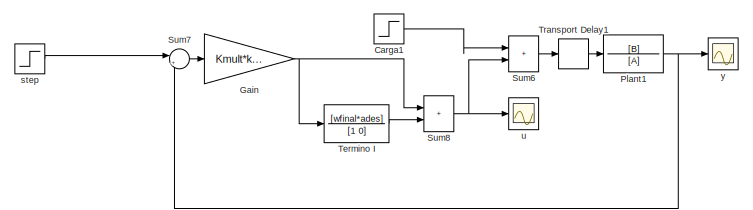
[diagram: root canvas - part 1/4, top right region]
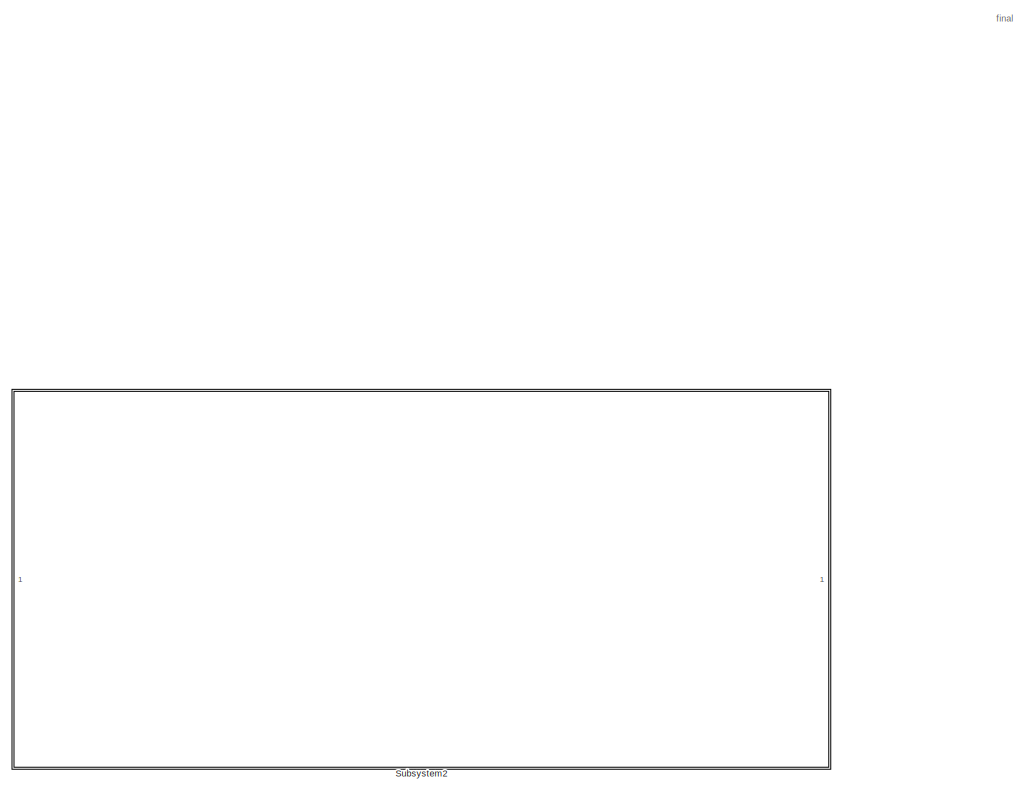
[diagram: root canvas - part 2/4, central region]
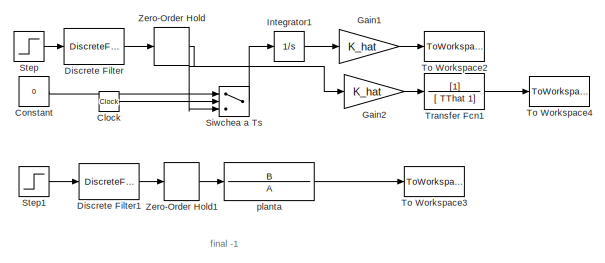
[diagram: root canvas - part 3/4, top left region]
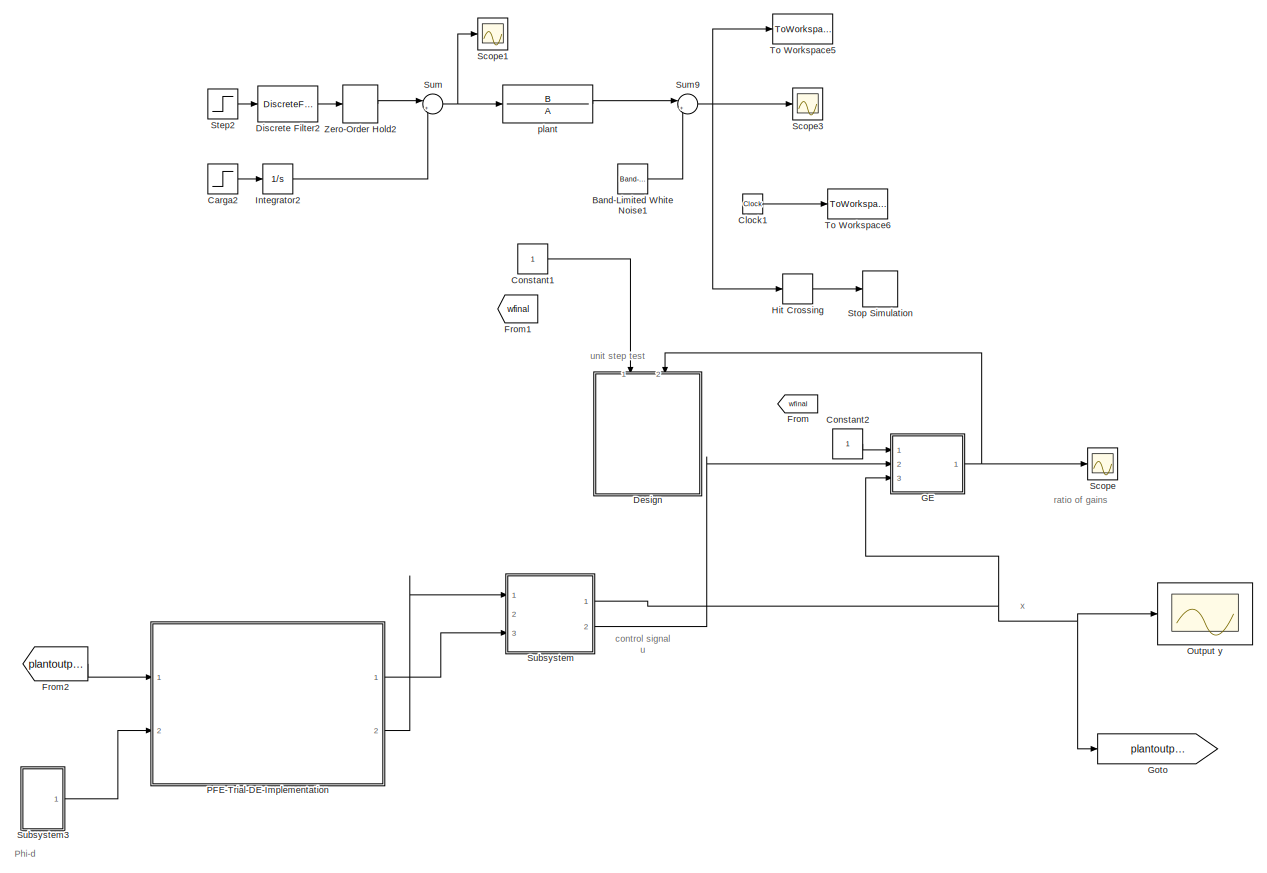
[diagram: root canvas - part 4/4, bottom left region]
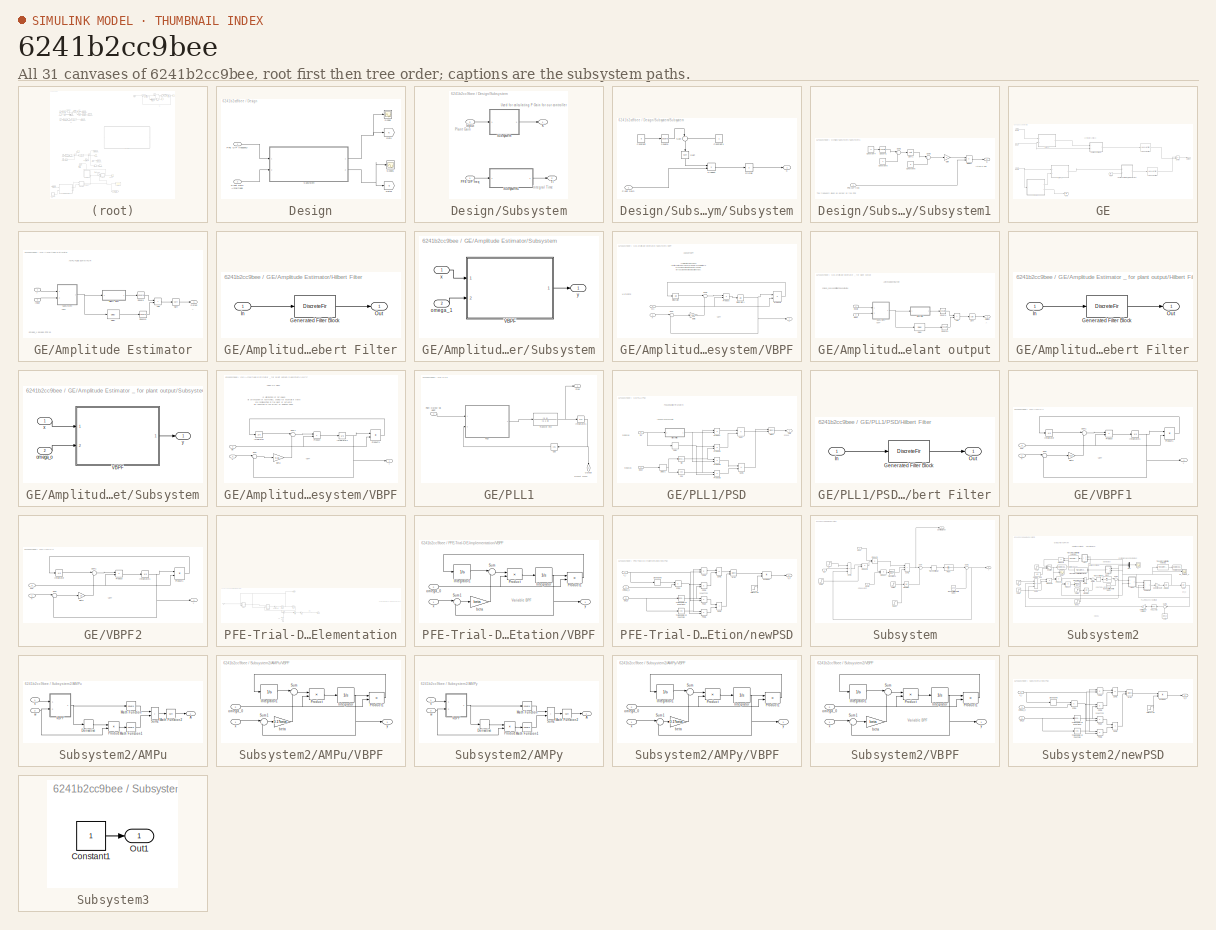
[diagram: thumbnail index - all 31 canvases of the model, root first then tree order]
MODEL slx_6241b2cc9bee
KIND model
CONFIG AbsTol = auto
CONFIG EnableMultiTasking = off
CONFIG FixedStep = auto
CONFIG MaxStep = 0.000002
CONFIG MinStep = 2e-12
CONFIG RelTol = 1e-3
CONFIG SampleTimeConstraint = Unconstrained
CONFIG Solver = ode15s
CONFIG SolverName = ode15s
CONFIG StartTime = 0.0
CONFIG StopTime = 1
WORKSPACE source: mxarray member
WORKSPACE Wo = 1
WORKSPACE wfinal: Simulink.Parameter (value not decoded)
BLOCK [Reference] Band-Limited White Noise1  REF=simulink/Sources/Band-Limited
White Noise
  Ports = [0, 1]
  SourceBlock = simulink/Sources/Band-Limited\nWhite Noise
  SourceProductBaseCode = SL
  SourceType = Band-Limited White Noise.
BLOCK [Step] Carga1
  After = load
  SampleTime = 0
  Time = 0
BLOCK [Step] Carga2
  After = load_s
  SampleTime = 0
  Time = T_l
BLOCK [Clock] Clock
BLOCK [Clock] Clock1
BLOCK [Constant] Constant
  Value = 0
BLOCK [Constant] Constant1
BLOCK [Constant] Constant2
BLOCK [SubSystem] Design
  NameLocation = left
  Ports = [2]
  RequestExecContextInheritance = off
BLOCK [Goto] Design/Goto
  GotoTag = K
  TagVisibility = global
BLOCK [Goto] Design/Goto1
  Commented = on
  GotoTag = Ti
  TagVisibility = global
BLOCK [Inport] Design/PFE O//P frequency
BLOCK [Inport] Design/Plant Gain Amplitude
  Port = 2
BLOCK [Scope] Design/Scope
  Floating = off
  NumInputPorts = 1
  Ports = [1]
  ScopeSpecificationString = Simulink.scopes.TimeScopeBlockCfg('CurrentConfiguration', extmgr.ConfigurationSet(extmgr.Configuration('Core','General UI',true),extmgr.Configuration('Core','Source UI',true),extmgr.Configuration('Sources','WiredSimulink',true,'DataLoggingVariableName','ScopeData2'),extmgr.Configuration('Visuals','Time Domain',true,'SerializedDisplays',{struct('MinYLimReal','-4497.21945','MaxYLimReal','40513.8312'...<+1392ch>
BLOCK [Scope] Design/Scope1
  Floating = off
  NumInputPorts = 1
  Ports = [1]
  ScopeSpecificationString = Simulink.scopes.TimeScopeBlockCfg('CurrentConfiguration', extmgr.ConfigurationSet(extmgr.Configuration('Core','General UI',true),extmgr.Configuration('Core','Source UI',true),extmgr.Configuration('Sources','WiredSimulink',true,'DataLoggingVariableName','ScopeData3'),extmgr.Configuration('Visuals','Time Domain',true,'SerializedDisplays',{struct('MinYLimReal','6.34242','MaxYLimReal','6.35362','YLabe...<+1422ch>
BLOCK [SubSystem] Design/Subsystem
  Ports = [2, 2]
  RequestExecContextInheritance = off
BLOCK [Inport] Design/Subsystem/Input
  Port = 2
BLOCK [Outport] Design/Subsystem/K
BLOCK [Inport] Design/Subsystem/PFE O//P freq
BLOCK [SubSystem] Design/Subsystem/Subsystem
  Ports = [1, 1]
  RequestExecContextInheritance = off
BLOCK [Constant] Design/Subsystem/Subsystem/Constant
  Value = a
BLOCK [Constant] Design/Subsystem/Subsystem/Constant1
  NameLocation = top
BLOCK [Product] Design/Subsystem/Subsystem/Divide
  Inputs = /
  Ports = [1, 1]
BLOCK [Outport] Design/Subsystem/Subsystem/K
BLOCK [Inport] Design/Subsystem/Subsystem/Plant Gain
BLOCK [Product] Design/Subsystem/Subsystem/Product
  Ports = [2, 1]
BLOCK [Sqrt] Design/Subsystem/Subsystem/Sqrt
  NameLocation = left
BLOCK [Math] Design/Subsystem/Subsystem/Square
  Operator = square
  Ports = [1, 1]
BLOCK [Sum] Design/Subsystem/Subsystem/Sum
  Inputs = |++
  NameLocation = left
  Ports = [2, 1]
BLOCK [SubSystem] Design/Subsystem/Subsystem1
  Ports = [1, 1]
  RequestExecContextInheritance = off
BLOCK [Constant] Design/Subsystem/Subsystem1/Constant4
  Value = a
BLOCK [Constant] Design/Subsystem/Subsystem1/Constant5
BLOCK [Constant] Design/Subsystem/Subsystem1/Constant6
  Value = a
BLOCK [Product] Design/Subsystem/Subsystem1/Divide1
  Inputs = */
  Ports = [2, 1]
BLOCK [Gain] Design/Subsystem/Subsystem1/Gain
  Gain = 2
BLOCK [Inport] Design/Subsystem/Subsystem1/PFE O//P freq
BLOCK [Sqrt] Design/Subsystem/Subsystem1/Sqrt1
BLOCK [Math] Design/Subsystem/Subsystem1/Square1
  Operator = square
  Ports = [1, 1]
BLOCK [Sum] Design/Subsystem/Subsystem1/Sum2
  Inputs = |++
  Ports = [2, 1]
BLOCK [Sum] Design/Subsystem/Subsystem1/Sum3
  Inputs = |++
  Ports = [2, 1]
BLOCK [Outport] Design/Subsystem/Subsystem1/Ti
BLOCK [Outport] Design/Subsystem/Ti
  Port = 2
BLOCK [DiscreteFilter] Discrete Filter
  Denominator = [1]
  InputPortMap = u0
  Numerator = [d1]
  Ports = [1, 1]
  SampleTime = h
BLOCK [DiscreteFilter] Discrete Filter1
  Denominator = [1]
  InputPortMap = u0
  Numerator = [d]
  Ports = [1, 1]
  SampleTime = h
BLOCK [DiscreteFilter] Discrete Filter2
  Denominator = [1]
  InputPortMap = u0
  Numerator = [d]
  Ports = [1, 1]
  SampleTime = h
BLOCK [From] From
  Commented = on
  GotoTag = wfinal
BLOCK [From] From1
  Commented = on
  GotoTag = wfinal
BLOCK [From] From2
  GotoTag = plantoutput
BLOCK [SubSystem] GE
  Ports = [3, 1]
  RequestExecContextInheritance = off
BLOCK [SubSystem] GE/Amplitude Estimator
  Ports = [2, 1]
  RequestExecContextInheritance = off
BLOCK [SubSystem] GE/Amplitude Estimator _ for plant output
  Ports = [2, 1]
  RequestExecContextInheritance = off
BLOCK [Sum] GE/Amplitude Estimator _ for plant output/Add
  IconShape = rectangular
  Ports = [2, 1]
BLOCK [Delay] GE/Amplitude Estimator _ for plant output/Delay
  DelayLength = 1
  InitialCondition = 0
  InputPortMap = u0
  Ports = [1, 1]
  UseCircularBuffer = on
  UserDataPersistent = on
BLOCK [SubSystem] GE/Amplitude Estimator _ for plant output/Hilbert Filter
  CopyFcn = fdesignblkfcn(gcbh, {'CopyFcn'});
  DialogController = fdesignblkfcn
  InitFcn = fdesignblkfcn(gcbh, {'InitFcn'});
  Ports = [1, 1]
  RequestExecContextInheritance = off
  UserDataPersistent = on
BLOCK [DiscreteFir] GE/Amplitude Estimator _ for plant output/Hilbert Filter/Generated Filter Block
  Coefficients = [-0.026449858259791379 -0.00578355491829027 -0.016572261903348456 -0.0095390561131982743 -0.022461390535071568 -0.014999256435125952 -0.030323967074738556 -0.023012528163449009 -0.041429315821655127 -0.035762828939278346 -0.05911752381753177 -0.059034685410808696 -0.094459906652176406 -0.11739830204172252 -0.21797718993610349 -0.62869353747279177 0.62869353747279177 0.21797718993610349 0.117398302...<+281ch>  <repeated x3 — deduplicated; at blocks: Generated Filter Block>
  InputPortMap = u0
  InputProcessing = Columns as channels (frame based)
  OutputPortMap = o0
  Ports = [1, 1]
  Tag = BlockMethodSubSystem
BLOCK [Inport] GE/Amplitude Estimator _ for plant output/Hilbert Filter/In
BLOCK [Outport] GE/Amplitude Estimator _ for plant output/Hilbert Filter/Out
  VectorParamsAs1DForOutWhenUnconnected = off
BLOCK [Inport] GE/Amplitude Estimator _ for plant output/Input
  Port = 2
BLOCK [Inport] GE/Amplitude Estimator _ for plant output/Input2
BLOCK [Outport] GE/Amplitude Estimator _ for plant output/Output
BLOCK [Sqrt] GE/Amplitude Estimator _ for plant output/Sqrt
BLOCK [Math] GE/Amplitude Estimator _ for plant output/Square
  Operator = square
  Ports = [1, 1]
BLOCK [Math] GE/Amplitude Estimator _ for plant output/Square1
  Operator = square
  Ports = [1, 1]
BLOCK [SubSystem] GE/Amplitude Estimator _ for plant output/Subsystem
  Ports = [2, 1]
  RequestExecContextInheritance = off
BLOCK [SubSystem] GE/Amplitude Estimator _ for plant output/Subsystem/VBPF
  Ports = [2, 1]
  RequestExecContextInheritance = off
BLOCK [Gain] GE/Amplitude Estimator _ for plant output/Subsystem/VBPF/Beta
  Gain = 0.15
BLOCK [Integrator] GE/Amplitude Estimator _ for plant output/Subsystem/VBPF/Integrator
  Ports = [1, 1]
BLOCK [Integrator] GE/Amplitude Estimator _ for plant output/Subsystem/VBPF/Integrator1
  Ports = [1, 1]
BLOCK [Product] GE/Amplitude Estimator _ for plant output/Subsystem/VBPF/Product
  Ports = [2, 1]
BLOCK [Product] GE/Amplitude Estimator _ for plant output/Subsystem/VBPF/Product1
  Ports = [2, 1]
BLOCK [Sum] GE/Amplitude Estimator _ for plant output/Subsystem/VBPF/Sum
  Inputs = |+-
  Ports = [2, 1]
BLOCK [Sum] GE/Amplitude Estimator _ for plant output/Subsystem/VBPF/Sum1
  Inputs = |-+
  Ports = [2, 1]
BLOCK [Inport] GE/Amplitude Estimator _ for plant output/Subsystem/VBPF/X
BLOCK [Inport] GE/Amplitude Estimator _ for plant output/Subsystem/VBPF/wo
  Port = 2
BLOCK [Outport] GE/Amplitude Estimator _ for plant output/Subsystem/VBPF/y
BLOCK [Inport] GE/Amplitude Estimator _ for plant output/Subsystem/omega_o
  Port = 2
BLOCK [Inport] GE/Amplitude Estimator _ for plant output/Subsystem/x
BLOCK [Outport] GE/Amplitude Estimator _ for plant output/Subsystem/y
BLOCK [Sum] GE/Amplitude Estimator/Add
  IconShape = rectangular
  Ports = [2, 1]
BLOCK [Delay] GE/Amplitude Estimator/Delay
  DelayLength = 1
  InitialCondition = 0
  InputPortMap = u0
  Ports = [1, 1]
  UseCircularBuffer = on
  UserDataPersistent = on
BLOCK [SubSystem] GE/Amplitude Estimator/Hilbert Filter
  CopyFcn = fdesignblkfcn(gcbh, {'CopyFcn'});
  DialogController = fdesignblkfcn
  InitFcn = fdesignblkfcn(gcbh, {'InitFcn'});
  Ports = [1, 1]
  RequestExecContextInheritance = off
  UserDataPersistent = on
BLOCK [DiscreteFir] GE/Amplitude Estimator/Hilbert Filter/Generated Filter Block
  InputPortMap = u0
  InputProcessing = Columns as channels (frame based)
  OutputPortMap = o0
  Ports = [1, 1]
  Tag = BlockMethodSubSystem
BLOCK [Inport] GE/Amplitude Estimator/Hilbert Filter/In
BLOCK [Outport] GE/Amplitude Estimator/Hilbert Filter/Out
  VectorParamsAs1DForOutWhenUnconnected = off
BLOCK [Inport] GE/Amplitude Estimator/Input
  Port = 2
BLOCK [Outport] GE/Amplitude Estimator/Output
BLOCK [Sqrt] GE/Amplitude Estimator/Sqrt
BLOCK [Math] GE/Amplitude Estimator/Square
  Operator = square
  Ports = [1, 1]
BLOCK [Math] GE/Amplitude Estimator/Square1
  Operator = square
  Ports = [1, 1]
BLOCK [SubSystem] GE/Amplitude Estimator/Subsystem
  Ports = [2, 1]
  RequestExecContextInheritance = off
BLOCK [SubSystem] GE/Amplitude Estimator/Subsystem/VBPF
  Ports = [2, 1]
  RequestExecContextInheritance = off
BLOCK [Gain] GE/Amplitude Estimator/Subsystem/VBPF/Beta
  Gain = 0.15
BLOCK [Integrator] GE/Amplitude Estimator/Subsystem/VBPF/Integrator
  Ports = [1, 1]
BLOCK [Integrator] GE/Amplitude Estimator/Subsystem/VBPF/Integrator1
  AbsoluteTolerance = 1000
  LimitOutput = on
  LowerSaturationLimit = -1000
  Ports = [1, 1]
  UpperSaturationLimit = 1000
BLOCK [Product] GE/Amplitude Estimator/Subsystem/VBPF/Product
  Ports = [2, 1]
BLOCK [Product] GE/Amplitude Estimator/Subsystem/VBPF/Product1
  Ports = [2, 1]
BLOCK [Sum] GE/Amplitude Estimator/Subsystem/VBPF/Sum
  Inputs = |+-
  Ports = [2, 1]
BLOCK [Sum] GE/Amplitude Estimator/Subsystem/VBPF/Sum1
  Inputs = |-+
  Ports = [2, 1]
BLOCK [Inport] GE/Amplitude Estimator/Subsystem/VBPF/W1
  Port = 2
BLOCK [Inport] GE/Amplitude Estimator/Subsystem/VBPF/X
BLOCK [Outport] GE/Amplitude Estimator/Subsystem/VBPF/y
BLOCK [Inport] GE/Amplitude Estimator/Subsystem/omega_1
  Port = 2
BLOCK [Inport] GE/Amplitude Estimator/Subsystem/x
BLOCK [Outport] GE/Amplitude Estimator/Subsystem/y
BLOCK [Inport] GE/Amplitude Estimator/y
BLOCK [Product] GE/Divide
  Inputs = */
  Ports = [2, 1]
BLOCK [From] GE/From
  GotoTag = wt
BLOCK [Goto] GE/Goto
  GotoTag = wt
BLOCK [Inport] GE/Input
BLOCK [Inport] GE/Input1
  Port = 2
BLOCK [Inport] GE/Input2
  Port = 3
BLOCK [Reference] GE/Lead-Lag Filter  REF=powerlib_meascontrol/Filters/Lead-Lag
Filter
  Ports = [1, 1]
  SourceBlock = powerlib_meascontrol/Filters/Lead-Lag\nFilter
  SourceProductBaseCode = PS
  SourceType = Lead-Lag Filter
BLOCK [Reference] GE/Lead-Lag Filter1  REF=powerlib_meascontrol/Filters/Lead-Lag
Filter
  Ports = [1, 1]
  SourceBlock = powerlib_meascontrol/Filters/Lead-Lag\nFilter
  SourceProductBaseCode = PS
  SourceType = Lead-Lag Filter
BLOCK [Outport] GE/Output
BLOCK [SubSystem] GE/PLL1
  Ports = [1, 2]
  RequestExecContextInheritance = off
BLOCK [Trigonometry] GE/PLL1/Cos
  NameLocation = top
  Operator = cos
  Ports = [1, 1]
BLOCK [Outport] GE/PLL1/Freq
BLOCK [Integrator] GE/PLL1/Integrator1
  Ports = [1, 1]
BLOCK [Outport] GE/PLL1/Output
  NameLocation = left
  Port = 2
BLOCK [SubSystem] GE/PLL1/PSD
  Ports = [2, 1]
  RequestExecContextInheritance = off
BLOCK [Trigonometry] GE/PLL1/PSD/Atan2
  Operator = atan2
  Ports = [2, 1]
BLOCK [Trigonometry] GE/PLL1/PSD/Cos
  Operator = cos
  Ports = [1, 1]
BLOCK [Delay] GE/PLL1/PSD/Delay
  DelayLength = 1
  InputPortMap = u0
  Ports = [1, 1]
BLOCK [Delay] GE/PLL1/PSD/Delay1
  DelayLength = 1
  InputPortMap = u0
  Ports = [1, 1]
BLOCK [SubSystem] GE/PLL1/PSD/Hilbert Filter
  CopyFcn = fdesignblkfcn(gcbh, {'CopyFcn'});
  DialogController = fdesignblkfcn
  InitFcn = fdesignblkfcn(gcbh, {'InitFcn'});
  Ports = [1, 1]
  RequestExecContextInheritance = off
  UserDataPersistent = on
BLOCK [DiscreteFir] GE/PLL1/PSD/Hilbert Filter/Generated Filter Block
  InputPortMap = u0
  InputProcessing = Columns as channels (frame based)
  OutputPortMap = o0
  Ports = [1, 1]
  Tag = BlockMethodSubSystem
BLOCK [Inport] GE/PLL1/PSD/Hilbert Filter/In
BLOCK [Outport] GE/PLL1/PSD/Hilbert Filter/Out
  VectorParamsAs1DForOutWhenUnconnected = off
BLOCK [Inport] GE/PLL1/PSD/In1
BLOCK [Inport] GE/PLL1/PSD/Input
  Port = 2
BLOCK [Outport] GE/PLL1/PSD/Out1
BLOCK [Product] GE/PLL1/PSD/Product
  Ports = [2, 1]
BLOCK [Product] GE/PLL1/PSD/Product1
  Ports = [2, 1]
BLOCK [Product] GE/PLL1/PSD/Product2
  Ports = [2, 1]
BLOCK [Product] GE/PLL1/PSD/Product3
  Ports = [2, 1]
BLOCK [Trigonometry] GE/PLL1/PSD/Sin
  Ports = [1, 1]
BLOCK [Sum] GE/PLL1/PSD/Sum
  IconShape = rectangular
  Inputs = |-+
  Ports = [2, 1]
BLOCK [Sum] GE/PLL1/PSD/Sum1
  IconShape = rectangular
  Inputs = |-+
  Ports = [2, 1]
BLOCK [Inport] GE/PLL1/Plant Output via VBPF
BLOCK [TransferFcn] GE/PLL1/Transfer Fcn
  Denominator = [1 1 0]
  Numerator = [1 1]
BLOCK [SubSystem] GE/VBPF1
  Ports = [2, 1]
  RequestExecContextInheritance = off
BLOCK [Gain] GE/VBPF1/Beta
  Gain = 0.15
BLOCK [Integrator] GE/VBPF1/Integrator
  Ports = [1, 1]
BLOCK [Integrator] GE/VBPF1/Integrator1
  Ports = [1, 1]
BLOCK [Product] GE/VBPF1/Product
  Ports = [2, 1]
BLOCK [Product] GE/VBPF1/Product1
  Ports = [2, 1]
BLOCK [Sum] GE/VBPF1/Sum
  Inputs = |+-
  Ports = [2, 1]
BLOCK [Sum] GE/VBPF1/Sum1
  Inputs = |-+
  Ports = [2, 1]
BLOCK [Inport] GE/VBPF1/Wo
  Port = 2
BLOCK [Inport] GE/VBPF1/X
BLOCK [Outport] GE/VBPF1/y
BLOCK [SubSystem] GE/VBPF2
  Ports = [2, 1]
  RequestExecContextInheritance = off
BLOCK [Gain] GE/VBPF2/Beta
  Gain = 1.5
BLOCK [Integrator] GE/VBPF2/Integrator
  Ports = [1, 1]
BLOCK [Integrator] GE/VBPF2/Integrator1
  LimitOutput = on
  LowerSaturationLimit = -10
  Ports = [1, 1]
  UpperSaturationLimit = 10
BLOCK [Product] GE/VBPF2/Product
  Ports = [2, 1]
BLOCK [Product] GE/VBPF2/Product1
  Ports = [2, 1]
BLOCK [Sum] GE/VBPF2/Sum
  Inputs = |+-
  Ports = [2, 1]
BLOCK [Sum] GE/VBPF2/Sum1
  Inputs = |-+
  Ports = [2, 1]
BLOCK [Inport] GE/VBPF2/Wo
  Port = 2
BLOCK [Inport] GE/VBPF2/X
BLOCK [Outport] GE/VBPF2/y
BLOCK [Gain] Gain
  Gain = Kmult*kfinal
  OutDataTypeStr = Inherit: Same as input
  ParamDataTypeStr = Inherit: Same as input
  SaturateOnIntegerOverflow = on
BLOCK [Gain] Gain1
  Gain = K_hat
  OutDataTypeStr = Inherit: Same as input
  ParamDataTypeStr = Inherit: Same as input
  SaturateOnIntegerOverflow = on
BLOCK [Gain] Gain2
  Gain = K_hat
  OutDataTypeStr = Inherit: Same as input
  ParamDataTypeStr = Inherit: Same as input
  SaturateOnIntegerOverflow = on
BLOCK [Goto] Goto
  GotoTag = plantoutput
BLOCK [HitCross] Hit Crossing
  HitCrossingDirection = rising
  HitCrossingOffset = Y2
  Ports = [1, 1]
BLOCK [Integrator] Integrator1
  Ports = [1, 1]
BLOCK [Integrator] Integrator2
  Ports = [1, 1]
BLOCK [Scope] Output y
  Floating = off
  NumInputPorts = 1
  Ports = [1]
  ScopeSpecificationString = Simulink.scopes.TimeScopeBlockCfg('CurrentConfiguration', extmgr.ConfigurationSet(extmgr.Configuration('Core','General UI',true),extmgr.Configuration('Core','Source UI',true),extmgr.Configuration('Sources','WiredSimulink',true),extmgr.Configuration('Visuals','Time Domain',true,'SerializedDisplays',{struct('MinYLimReal','-1.00000','MaxYLimReal','1.00000','YLabelReal','','MinYLimMag','0.00000','MaxY...<+1331ch>
BLOCK [SubSystem] PFE-Trial-DE-Implementation
  Ports = [2, 2]
  RequestExecContextInheritance = off
BLOCK [Gain] PFE-Trial-DE-Implementation/   adaptive gain
  Gain = K
  OutDataTypeStr = Inherit: Same as input
  ParamDataTypeStr = Inherit: Same as input
  SaturateOnIntegerOverflow = on
BLOCK [Gain] PFE-Trial-DE-Implementation/Gain
  Gain = a
BLOCK [Inport] PFE-Trial-DE-Implementation/Input1
  NameLocation = left
  Port = 2
BLOCK [Outport] PFE-Trial-DE-Implementation/Output
BLOCK [Outport] PFE-Trial-DE-Implementation/Output1
  Port = 2
BLOCK [Trigonometry] PFE-Trial-DE-Implementation/Sin
  Ports = [1, 1]
BLOCK [Sum] PFE-Trial-DE-Implementation/Sum1
  Inputs = |+-
  Ports = [2, 1]
BLOCK [SubSystem] PFE-Trial-DE-Implementation/VBPF
  Ports = [2, 1]
  RequestExecContextInheritance = off
BLOCK [Integrator] PFE-Trial-DE-Implementation/VBPF/Integrator
  Ports = [1, 1]
BLOCK [Integrator] PFE-Trial-DE-Implementation/VBPF/Integrator1
  Ports = [1, 1]
BLOCK [Product] PFE-Trial-DE-Implementation/VBPF/Product
  InputSameDT = on
  OutDataTypeStr = Inherit: Same as first input
  Ports = [2, 1]
  SaturateOnIntegerOverflow = on
BLOCK [Product] PFE-Trial-DE-Implementation/VBPF/Product1
  InputSameDT = on
  OutDataTypeStr = Inherit: Same as first input
  Ports = [2, 1]
  SaturateOnIntegerOverflow = on
BLOCK [Sum] PFE-Trial-DE-Implementation/VBPF/Sum
  InputSameDT = on
  Inputs = |-+
  OutDataTypeStr = Inherit: Same as first input
  Ports = [2, 1]
  SaturateOnIntegerOverflow = on
BLOCK [Sum] PFE-Trial-DE-Implementation/VBPF/Sum1
  InputSameDT = on
  Inputs = |+-
  OutDataTypeStr = Inherit: Same as first input
  Ports = [2, 1]
  SaturateOnIntegerOverflow = on
BLOCK [Gain] PFE-Trial-DE-Implementation/VBPF/beta
  Gain = beta
  OutDataTypeStr = Inherit: Same as input
  ParamDataTypeStr = Inherit: Same as input
  SaturateOnIntegerOverflow = on
BLOCK [Inport] PFE-Trial-DE-Implementation/VBPF/omega_0
  Port = 2
BLOCK [Inport] PFE-Trial-DE-Implementation/VBPF/x
BLOCK [Outport] PFE-Trial-DE-Implementation/VBPF/y
BLOCK [Integrator] PFE-Trial-DE-Implementation/VCO 
  InitialCondition = -pi
  LowerSaturationLimit = 0.5
  Ports = [1, 1]
BLOCK [Inport] PFE-Trial-DE-Implementation/X
BLOCK [SubSystem] PFE-Trial-DE-Implementation/newPSD
  Ports = [3, 1]
  RequestExecContextInheritance = off
BLOCK [Derivative] PFE-Trial-DE-Implementation/newPSD/Derivative
BLOCK [Product] PFE-Trial-DE-Implementation/newPSD/PSD1
  InputSameDT = on
  Inputs = */
  OutDataTypeStr = Inherit: Same as first input
  Ports = [2, 1]
  SaturateOnIntegerOverflow = on
BLOCK [Product] PFE-Trial-DE-Implementation/newPSD/PSD2
  InputSameDT = on
  Inputs = **
  OutDataTypeStr = Inherit: Same as first input
  Ports = [2, 1]
  SaturateOnIntegerOverflow = on
BLOCK [Product] PFE-Trial-DE-Implementation/newPSD/PSD3
  InputSameDT = on
  Inputs = **
  OutDataTypeStr = Inherit: Same as first input
  Ports = [2, 1]
  SaturateOnIntegerOverflow = on
BLOCK [Product] PFE-Trial-DE-Implementation/newPSD/PSD4
  InputSameDT = on
  Inputs = **
  OutDataTypeStr = Inherit: Same as first input
  Ports = [2, 1]
  SaturateOnIntegerOverflow = on
BLOCK [Product] PFE-Trial-DE-Implementation/newPSD/PSD5
  InputSameDT = on
  Inputs = **
  OutDataTypeStr = Inherit: Same as first input
  Ports = [2, 1]
  SaturateOnIntegerOverflow = on
BLOCK [Product] PFE-Trial-DE-Implementation/newPSD/Product
  InputSameDT = on
  OutDataTypeStr = Inherit: Same as first input
  Ports = [2, 1]
  SaturateOnIntegerOverflow = on
BLOCK [Outport] PFE-Trial-DE-Implementation/newPSD/S_e
BLOCK [Sum] PFE-Trial-DE-Implementation/newPSD/Sum1
  IconShape = rectangular
  InputSameDT = on
  Inputs = |+-
  OutDataTypeStr = Inherit: Same as first input
  Ports = [2, 1]
  SaturateOnIntegerOverflow = on
BLOCK [Sum] PFE-Trial-DE-Implementation/newPSD/Sum4
  IconShape = rectangular
  InputSameDT = on
  OutDataTypeStr = Inherit: Same as first input
  Ports = [2, 1]
  SaturateOnIntegerOverflow = on
BLOCK [Step] PFE-Trial-DE-Implementation/newPSD/Switch-on
  SampleTime = 0
  Time = Tsw+tstop
BLOCK [Trigonometry] PFE-Trial-DE-Implementation/newPSD/Trigonometric Function
  Operator = cos
  Ports = [1, 1]
BLOCK [Trigonometry] PFE-Trial-DE-Implementation/newPSD/Trigonometric Function1
  Ports = [1, 1]
BLOCK [Trigonometry] PFE-Trial-DE-Implementation/newPSD/atan
  Operator = atan2
  Ports = [2, 1]
BLOCK [Inport] PFE-Trial-DE-Implementation/newPSD/omega_o
  Port = 3
BLOCK [Inport] PFE-Trial-DE-Implementation/newPSD/phi_o
  Port = 2
BLOCK [Inport] PFE-Trial-DE-Implementation/newPSD/s_i
BLOCK [Integrator] PFE-Trial-DE-Implementation/omega
  InitialCondition = wbar
  LowerSaturationLimit = wbar/3
  Ports = [1, 1]
BLOCK [TransferFcn] Plant1
  Denominator = [A]
  Numerator = [B]
BLOCK [Scope] Scope
  Floating = off
  NumInputPorts = 1
  Ports = [1]
  ScopeSpecificationString = Simulink.scopes.TimeScopeBlockCfg('CurrentConfiguration', extmgr.ConfigurationSet(extmgr.Configuration('Core','General UI',true),extmgr.Configuration('Core','Source UI',true),extmgr.Configuration('Sources','WiredSimulink',true,'DataLoggingVariableName','ScopeData1'),extmgr.Configuration('Visuals','Time Domain',true,'SerializedDisplays',{struct('MinYLimReal','-0.02877','MaxYLimReal','0.25896','YLab...<+1394ch>
BLOCK [Scope] Scope1
  Floating = off
  NumInputPorts = 1
  Ports = [1]
  ScopeSpecificationString = Simulink.scopes.TimeScopeBlockCfg('CurrentConfiguration', extmgr.ConfigurationSet(extmgr.Configuration('Core','General UI',true),extmgr.Configuration('Core','Source UI',true),extmgr.Configuration('Sources','WiredSimulink',true,'DataLoggingSaveFormat','StructureWithTime','DataLoggingMaxPoints','50000','DataLoggingLimitDataPoints',true,'DataLoggingDecimation','1','DataLoggingDecimateData',true,'Data...<+1712ch>
BLOCK [Scope] Scope3
  Floating = off
  NumInputPorts = 1
  Ports = [1]
  ScopeSpecificationString = Simulink.scopes.TimeScopeBlockCfg('CurrentConfiguration', extmgr.ConfigurationSet(extmgr.Configuration('Core','General UI',true),extmgr.Configuration('Core','Source UI',true),extmgr.Configuration('Sources','WiredSimulink',true,'DataLoggingVariableName','ScopeData1','DataLoggingSaveFormat','StructureWithTime','DataLoggingMaxPoints','50000','DataLoggingLimitDataPoints',true,'DataLoggingDecimation','...<+1712ch>
BLOCK [Switch] Siwchea a Ts
  InputSameDT = off
  Threshold = Ts
BLOCK [Step] Step
  After = stepsize
  SampleTime = h
  Time = 0
BLOCK [Step] Step1
  After = stepsize
  SampleTime = h
  Time = 0
BLOCK [Step] Step2
  After = stepsize
  SampleTime = h
  Time = 0
BLOCK [Stop] Stop Simulation
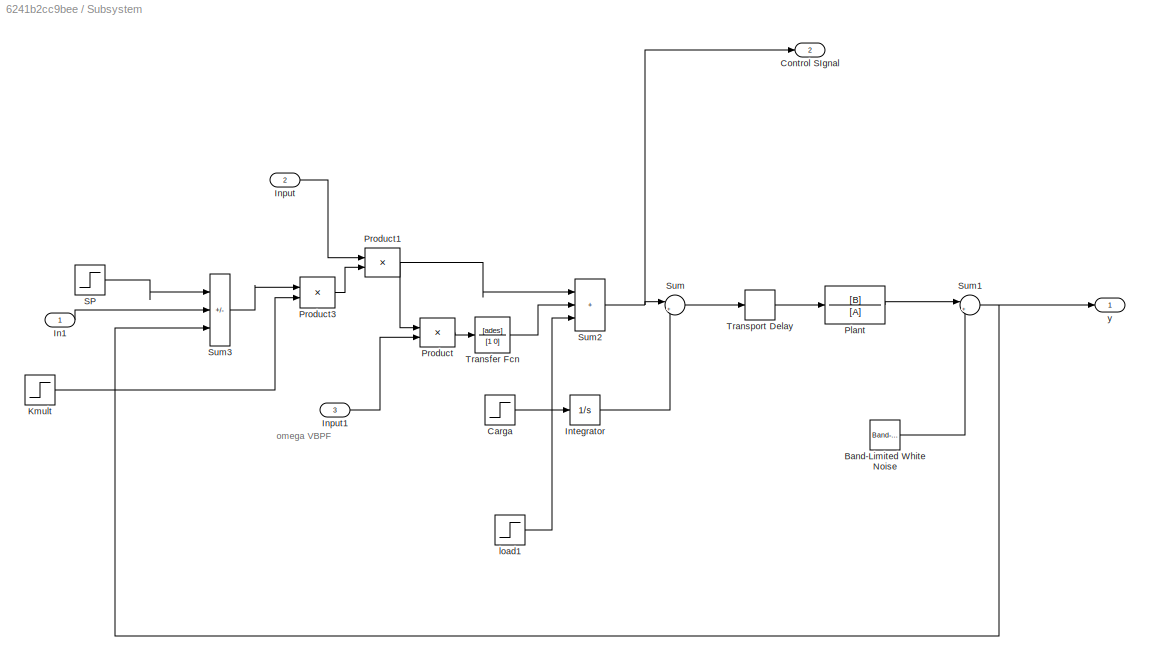
BLOCK [SubSystem] Subsystem
  Ports = [3, 2]
  RequestExecContextInheritance = off
BLOCK [Reference] Subsystem/Band-Limited White Noise  REF=simulink/Sources/Band-Limited
White Noise
  Ports = [0, 1]
  SourceBlock = simulink/Sources/Band-Limited\nWhite Noise
  SourceProductBaseCode = SL
  SourceType = Band-Limited White Noise.
BLOCK [Step] Subsystem/Carga
  After = load_s
  SampleTime = 0
  Time = T_l
BLOCK [Outport] Subsystem/Control SIgnal
  Port = 2
BLOCK [Inport] Subsystem/In1
BLOCK [Inport] Subsystem/Input
  Port = 2
BLOCK [Inport] Subsystem/Input1
  Port = 3
BLOCK [Integrator] Subsystem/Integrator
  Ports = [1, 1]
BLOCK [Step] Subsystem/Kmult
  After = Kmult
  SampleTime = 0
  Time = tstop
BLOCK [TransferFcn] Subsystem/Plant
  Denominator = [A]
  Numerator = [B]
BLOCK [Product] Subsystem/Product
  InputSameDT = on
  OutDataTypeStr = Inherit: Same as first input
  Ports = [2, 1]
  SaturateOnIntegerOverflow = on
BLOCK [Product] Subsystem/Product1
  InputSameDT = on
  OutDataTypeStr = Inherit: Same as first input
  Ports = [2, 1]
  SaturateOnIntegerOverflow = on
BLOCK [Product] Subsystem/Product3
  InputSameDT = on
  OutDataTypeStr = Inherit: Same as first input
  Ports = [2, 1]
  SaturateOnIntegerOverflow = on
BLOCK [Step] Subsystem/SP
  After = SetPoint
  Before = SetPoint
  SampleTime = 0
  Time = Tmax_c/2
BLOCK [Sum] Subsystem/Sum
  Inputs = |++
  Ports = [2, 1]
BLOCK [Sum] Subsystem/Sum1
  InputSameDT = on
  Inputs = |++
  OutDataTypeStr = Inherit: Same as first input
  Ports = [2, 1]
  SaturateOnIntegerOverflow = on
BLOCK [Sum] Subsystem/Sum2
  IconShape = rectangular
  Inputs = |+++
  Ports = [3, 1]
BLOCK [Sum] Subsystem/Sum3
  IconShape = rectangular
  InputSameDT = on
  Inputs = |++-
  OutDataTypeStr = Inherit: Same as first input
  Ports = [3, 1]
  SaturateOnIntegerOverflow = on
BLOCK [TransferFcn] Subsystem/Transfer Fcn
  Denominator = [1 0]
  Numerator = [ades]
BLOCK [TransportDelay] Subsystem/Transport Delay
  BufferSize = 65536
  DelayTime = Td
  Ports = [1, 1]
BLOCK [Step] Subsystem/load1
  After = stepsize
  Before = stepsize
  SampleTime = 0
  Time = Tmax
BLOCK [Outport] Subsystem/y
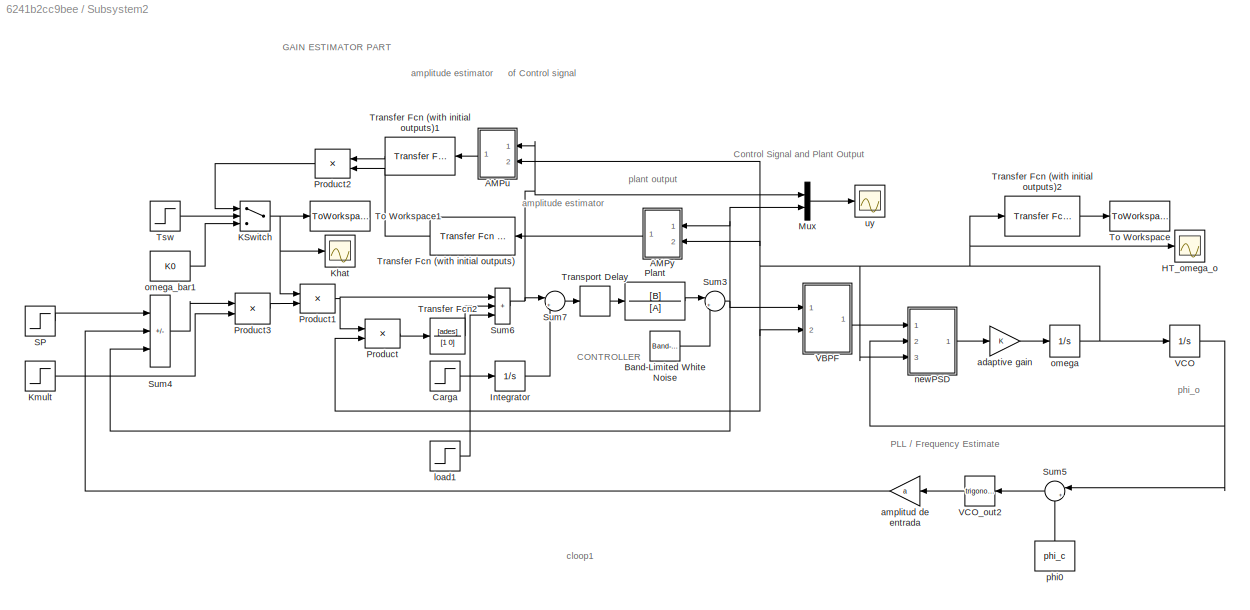
BLOCK [SubSystem] Subsystem2
  Ports = []
  RequestExecContextInheritance = off
BLOCK [Gain] Subsystem2/   adaptive gain
  Gain = K
  OutDataTypeStr = Inherit: Same as input
  ParamDataTypeStr = Inherit: Same as input
  SaturateOnIntegerOverflow = on
BLOCK [Gain] Subsystem2/   amplitud de entrada
  Gain = a
  OutDataTypeStr = Inherit: Same as input
  ParamDataTypeStr = Inherit: Same as input
  SaturateOnIntegerOverflow = on
BLOCK [SubSystem] Subsystem2/AMPu
  Ports = [2, 1]
  RequestExecContextInheritance = off
BLOCK [Outport] Subsystem2/AMPu/A
BLOCK [Derivative] Subsystem2/AMPu/Derivative
BLOCK [Math] Subsystem2/AMPu/Math Function
  Operator = square
  Ports = [1, 1]
  SignedPower = on
BLOCK [Math] Subsystem2/AMPu/Math Function1
  Operator = square
  Ports = [1, 1]
  SignedPower = on
BLOCK [Math] Subsystem2/AMPu/Math Function2
  Operator = sqrt
  Ports = [1, 1]
  SignedPower = on
BLOCK [Product] Subsystem2/AMPu/Product
  Inputs = */
  OutDataTypeStr = Inherit: Same as first input
  Ports = [2, 1]
  SaturateOnIntegerOverflow = on
BLOCK [Sum] Subsystem2/AMPu/Sum2
  IconShape = rectangular
  InputSameDT = on
  OutDataTypeStr = Inherit: Same as first input
  Ports = [2, 1]
  SaturateOnIntegerOverflow = on
BLOCK [SubSystem] Subsystem2/AMPu/VBPF
  Ports = [2, 1]
  RequestExecContextInheritance = off
BLOCK [Integrator] Subsystem2/AMPu/VBPF/Integrator
  Ports = [1, 1]
BLOCK [Integrator] Subsystem2/AMPu/VBPF/Integrator1
  Ports = [1, 1]
BLOCK [Product] Subsystem2/AMPu/VBPF/Product
  InputSameDT = on
  OutDataTypeStr = Inherit: Same as first input
  Ports = [2, 1]
  SaturateOnIntegerOverflow = on
BLOCK [Product] Subsystem2/AMPu/VBPF/Product1
  InputSameDT = on
  OutDataTypeStr = Inherit: Same as first input
  Ports = [2, 1]
  SaturateOnIntegerOverflow = on
BLOCK [Sum] Subsystem2/AMPu/VBPF/Sum
  InputSameDT = on
  Inputs = |-+
  OutDataTypeStr = Inherit: Same as first input
  Ports = [2, 1]
  SaturateOnIntegerOverflow = on
BLOCK [Sum] Subsystem2/AMPu/VBPF/Sum1
  InputSameDT = on
  Inputs = |+-
  OutDataTypeStr = Inherit: Same as first input
  Ports = [2, 1]
  SaturateOnIntegerOverflow = on
BLOCK [Gain] Subsystem2/AMPu/VBPF/beta
  Gain = 0.1*beta
  OutDataTypeStr = Inherit: Same as input
  ParamDataTypeStr = Inherit: Same as input
  SaturateOnIntegerOverflow = on
BLOCK [Inport] Subsystem2/AMPu/VBPF/omega_0
  Port = 2
BLOCK [Inport] Subsystem2/AMPu/VBPF/x
BLOCK [Outport] Subsystem2/AMPu/VBPF/y
BLOCK [Inport] Subsystem2/AMPu/s
BLOCK [Inport] Subsystem2/AMPu/w
  Port = 2
BLOCK [SubSystem] Subsystem2/AMPy
  Ports = [2, 1]
  RequestExecContextInheritance = off
BLOCK [Outport] Subsystem2/AMPy/A
BLOCK [Derivative] Subsystem2/AMPy/Derivative
BLOCK [Math] Subsystem2/AMPy/Math Function
  Operator = square
  Ports = [1, 1]
  SignedPower = on
BLOCK [Math] Subsystem2/AMPy/Math Function1
  Operator = square
  Ports = [1, 1]
  SignedPower = on
BLOCK [Math] Subsystem2/AMPy/Math Function2
  Operator = sqrt
  Ports = [1, 1]
  SignedPower = on
BLOCK [Product] Subsystem2/AMPy/Product
  Inputs = */
  OutDataTypeStr = Inherit: Same as first input
  Ports = [2, 1]
  SaturateOnIntegerOverflow = on
BLOCK [Sum] Subsystem2/AMPy/Sum2
  IconShape = rectangular
  InputSameDT = on
  OutDataTypeStr = Inherit: Same as first input
  Ports = [2, 1]
  SaturateOnIntegerOverflow = on
BLOCK [SubSystem] Subsystem2/AMPy/VBPF
  Ports = [2, 1]
  RequestExecContextInheritance = off
BLOCK [Integrator] Subsystem2/AMPy/VBPF/Integrator
  Ports = [1, 1]
BLOCK [Integrator] Subsystem2/AMPy/VBPF/Integrator1
  Ports = [1, 1]
BLOCK [Product] Subsystem2/AMPy/VBPF/Product
  InputSameDT = on
  OutDataTypeStr = Inherit: Same as first input
  Ports = [2, 1]
  SaturateOnIntegerOverflow = on
BLOCK [Product] Subsystem2/AMPy/VBPF/Product1
  InputSameDT = on
  OutDataTypeStr = Inherit: Same as first input
  Ports = [2, 1]
  SaturateOnIntegerOverflow = on
BLOCK [Sum] Subsystem2/AMPy/VBPF/Sum
  InputSameDT = on
  Inputs = |-+
  OutDataTypeStr = Inherit: Same as first input
  Ports = [2, 1]
  SaturateOnIntegerOverflow = on
BLOCK [Sum] Subsystem2/AMPy/VBPF/Sum1
  InputSameDT = on
  Inputs = |+-
  OutDataTypeStr = Inherit: Same as first input
  Ports = [2, 1]
  SaturateOnIntegerOverflow = on
BLOCK [Gain] Subsystem2/AMPy/VBPF/beta
  Gain = 0.1*beta
  OutDataTypeStr = Inherit: Same as input
  ParamDataTypeStr = Inherit: Same as input
  SaturateOnIntegerOverflow = on
BLOCK [Inport] Subsystem2/AMPy/VBPF/omega_0
  Port = 2
BLOCK [Inport] Subsystem2/AMPy/VBPF/x
BLOCK [Outport] Subsystem2/AMPy/VBPF/y
BLOCK [Inport] Subsystem2/AMPy/s
BLOCK [Inport] Subsystem2/AMPy/w
  Port = 2
BLOCK [Reference] Subsystem2/Band-Limited White Noise  REF=simulink/Sources/Band-Limited
White Noise
  Ports = [0, 1]
  SourceBlock = simulink/Sources/Band-Limited\nWhite Noise
  SourceProductBaseCode = SL
  SourceType = Band-Limited White Noise.
BLOCK [Step] Subsystem2/Carga
  After = load_s
  SampleTime = 0
  Time = T_l
BLOCK [Scope] Subsystem2/HT_omega_o
  Floating = off
  NumInputPorts = 1
  Ports = [1]
  ScopeSpecificationString = Simulink.scopes.TimeScopeBlockCfg('CurrentConfiguration', extmgr.ConfigurationSet(extmgr.Configuration('Core','General UI',true),extmgr.Configuration('Core','Source UI',true),extmgr.Configuration('Sources','WiredSimulink',true,'DataLogging',true,'DataLoggingVariableName','wh','DataLoggingSaveFormat','Array','DataLoggingMaxPoints','200000','DataLoggingDecimation','10','DataLoggingDecimateData',true...<+1792ch>
BLOCK [Integrator] Subsystem2/Integrator
  Ports = [1, 1]
BLOCK [Switch] Subsystem2/KSwitch
  Threshold = 0.5
  ZeroCross = off
BLOCK [Scope] Subsystem2/Khat
  Floating = off
  NumInputPorts = 1
  Ports = [1]
  ScopeSpecificationString = Simulink.scopes.TimeScopeBlockCfg('CurrentConfiguration', extmgr.ConfigurationSet(extmgr.Configuration('Core','General UI',true),extmgr.Configuration('Core','Source UI',true),extmgr.Configuration('Sources','WiredSimulink',true,'DataLogging',true,'DataLoggingVariableName','Khat','DataLoggingSaveFormat','Array','DataLoggingMaxPoints','200000','DataLoggingDecimation','10','DataLoggingDecimateData',tr...<+1759ch>
BLOCK [Step] Subsystem2/Kmult
  After = Kmult
  SampleTime = 0
  Time = tstop
BLOCK [Mux] Subsystem2/Mux
  DisplayOption = bar
  Inputs = 2
  Ports = [2, 1]
BLOCK [TransferFcn] Subsystem2/Plant
  Denominator = [A]
  Numerator = [B]
BLOCK [Product] Subsystem2/Product
  InputSameDT = on
  OutDataTypeStr = Inherit: Same as first input
  Ports = [2, 1]
  SaturateOnIntegerOverflow = on
BLOCK [Product] Subsystem2/Product1
  InputSameDT = on
  OutDataTypeStr = Inherit: Same as first input
  Ports = [2, 1]
  SaturateOnIntegerOverflow = on
BLOCK [Product] Subsystem2/Product2
  InputSameDT = on
  Inputs = */
  OutDataTypeStr = Inherit: Same as first input
  Ports = [2, 1]
  SaturateOnIntegerOverflow = on
BLOCK [Product] Subsystem2/Product3
  InputSameDT = on
  OutDataTypeStr = Inherit: Same as first input
  Ports = [2, 1]
  SaturateOnIntegerOverflow = on
BLOCK [Step] Subsystem2/SP
  After = SetPoint
  Before = SetPoint
  SampleTime = 0
  Time = Tmax_c/2
BLOCK [Sum] Subsystem2/Sum3
  InputSameDT = on
  Inputs = |++
  OutDataTypeStr = Inherit: Same as first input
  Ports = [2, 1]
  SaturateOnIntegerOverflow = on
BLOCK [Sum] Subsystem2/Sum4
  IconShape = rectangular
  InputSameDT = on
  Inputs = |++-
  OutDataTypeStr = Inherit: Same as first input
  Ports = [3, 1]
  SaturateOnIntegerOverflow = on
BLOCK [Sum] Subsystem2/Sum5
  InputSameDT = on
  Inputs = |+-
  NameLocation = top
  OutDataTypeStr = Inherit: Same as first input
  Ports = [2, 1]
  SaturateOnIntegerOverflow = on
BLOCK [Sum] Subsystem2/Sum6
  IconShape = rectangular
  InputSameDT = on
  Inputs = |+++
  OutDataTypeStr = Inherit: Same as first input
  Ports = [3, 1]
  SaturateOnIntegerOverflow = on
BLOCK [Sum] Subsystem2/Sum7
  InputSameDT = on
  Inputs = |++
  OutDataTypeStr = Inherit: Same as first input
  Ports = [2, 1]
  SaturateOnIntegerOverflow = on
BLOCK [ToWorkspace] Subsystem2/To Workspace
  MaxDataPoints = 1
  Ports = [1]
  SampleTime = -1
  VariableName = wfinal
BLOCK [ToWorkspace] Subsystem2/To Workspace1
  MaxDataPoints = 1
  Ports = [1]
  VariableName = kfinal
BLOCK [Reference] Subsystem2/Transfer Fcn (with initial outputs)  REF=simulink_extras/Additional
Linear/Transfer Fcn
(with initial outputs)
  Ports = [1, 1]
  SourceBlock = simulink_extras/Additional\nLinear/Transfer Fcn\n(with initial outputs)
  SourceProductBaseCode = SL
  SourceType = Transfer Function with Initial Outputs
BLOCK [Reference] Subsystem2/Transfer Fcn (with initial outputs)1  REF=simulink_extras/Additional
Linear/Transfer Fcn
(with initial outputs)
  Ports = [1, 1]
  SourceBlock = simulink_extras/Additional\nLinear/Transfer Fcn\n(with initial outputs)
  SourceProductBaseCode = SL
  SourceType = Transfer Function with Initial Outputs
BLOCK [Reference] Subsystem2/Transfer Fcn (with initial outputs)2  REF=simulink_extras/Additional
Linear/Transfer Fcn
(with initial outputs)
  Ports = [1, 1]
  SourceBlock = simulink_extras/Additional\nLinear/Transfer Fcn\n(with initial outputs)
  SourceProductBaseCode = SL
  SourceType = Transfer Function with Initial Outputs
BLOCK [TransferFcn] Subsystem2/Transfer Fcn2
  Denominator = [1 0]
  Numerator = [ades]
BLOCK [TransportDelay] Subsystem2/Transport Delay
  BufferSize = 65536
  DelayTime = Td
  Ports = [1, 1]
BLOCK [Step] Subsystem2/Tsw
  SampleTime = 0
  Time = TswK+tstop
BLOCK [SubSystem] Subsystem2/VBPF
  Ports = [2, 1]
  RequestExecContextInheritance = off
BLOCK [Integrator] Subsystem2/VBPF/Integrator
  Ports = [1, 1]
BLOCK [Integrator] Subsystem2/VBPF/Integrator1
  Ports = [1, 1]
BLOCK [Product] Subsystem2/VBPF/Product
  InputSameDT = on
  OutDataTypeStr = Inherit: Same as first input
  Ports = [2, 1]
  SaturateOnIntegerOverflow = on
BLOCK [Product] Subsystem2/VBPF/Product1
  InputSameDT = on
  OutDataTypeStr = Inherit: Same as first input
  Ports = [2, 1]
  SaturateOnIntegerOverflow = on
BLOCK [Sum] Subsystem2/VBPF/Sum
  InputSameDT = on
  Inputs = |-+
  OutDataTypeStr = Inherit: Same as first input
  Ports = [2, 1]
  SaturateOnIntegerOverflow = on
BLOCK [Sum] Subsystem2/VBPF/Sum1
  InputSameDT = on
  Inputs = |+-
  OutDataTypeStr = Inherit: Same as first input
  Ports = [2, 1]
  SaturateOnIntegerOverflow = on
BLOCK [Gain] Subsystem2/VBPF/beta
  Gain = beta
  OutDataTypeStr = Inherit: Same as input
  ParamDataTypeStr = Inherit: Same as input
  SaturateOnIntegerOverflow = on
BLOCK [Inport] Subsystem2/VBPF/omega_0
  Port = 2
BLOCK [Inport] Subsystem2/VBPF/x
BLOCK [Outport] Subsystem2/VBPF/y
BLOCK [Integrator] Subsystem2/VCO 
  InitialCondition = -pi
  LowerSaturationLimit = 0.5
  Ports = [1, 1]
BLOCK [Trigonometry] Subsystem2/VCO_out2
  Ports = [1, 1]
BLOCK [Step] Subsystem2/load1
  After = stepsize
  Before = stepsize
  SampleTime = 0
  Time = Tmax
BLOCK [SubSystem] Subsystem2/newPSD
  Ports = [3, 1]
  RequestExecContextInheritance = off
BLOCK [Derivative] Subsystem2/newPSD/Derivative
BLOCK [Product] Subsystem2/newPSD/PSD1
  InputSameDT = on
  Inputs = */
  OutDataTypeStr = Inherit: Same as first input
  Ports = [2, 1]
  SaturateOnIntegerOverflow = on
BLOCK [Product] Subsystem2/newPSD/PSD2
  InputSameDT = on
  Inputs = **
  OutDataTypeStr = Inherit: Same as first input
  Ports = [2, 1]
  SaturateOnIntegerOverflow = on
BLOCK [Product] Subsystem2/newPSD/PSD3
  InputSameDT = on
  Inputs = **
  OutDataTypeStr = Inherit: Same as first input
  Ports = [2, 1]
  SaturateOnIntegerOverflow = on
BLOCK [Product] Subsystem2/newPSD/PSD4
  InputSameDT = on
  Inputs = **
  OutDataTypeStr = Inherit: Same as first input
  Ports = [2, 1]
  SaturateOnIntegerOverflow = on
BLOCK [Product] Subsystem2/newPSD/PSD5
  InputSameDT = on
  Inputs = **
  OutDataTypeStr = Inherit: Same as first input
  Ports = [2, 1]
  SaturateOnIntegerOverflow = on
BLOCK [Product] Subsystem2/newPSD/Product
  InputSameDT = on
  OutDataTypeStr = Inherit: Same as first input
  Ports = [2, 1]
  SaturateOnIntegerOverflow = on
BLOCK [Outport] Subsystem2/newPSD/S_e
BLOCK [Sum] Subsystem2/newPSD/Sum1
  IconShape = rectangular
  InputSameDT = on
  Inputs = |+-
  OutDataTypeStr = Inherit: Same as first input
  Ports = [2, 1]
  SaturateOnIntegerOverflow = on
BLOCK [Sum] Subsystem2/newPSD/Sum4
  IconShape = rectangular
  InputSameDT = on
  OutDataTypeStr = Inherit: Same as first input
  Ports = [2, 1]
  SaturateOnIntegerOverflow = on
BLOCK [Step] Subsystem2/newPSD/Switch-on
  SampleTime = 0
  Time = Tsw+tstop
BLOCK [Trigonometry] Subsystem2/newPSD/Trigonometric Function
  Operator = cos
  Ports = [1, 1]
BLOCK [Trigonometry] Subsystem2/newPSD/Trigonometric Function1
  Ports = [1, 1]
BLOCK [Trigonometry] Subsystem2/newPSD/atan
  Operator = atan2
  Ports = [2, 1]
BLOCK [Inport] Subsystem2/newPSD/omega_o
  Port = 3
BLOCK [Inport] Subsystem2/newPSD/phi_o
  Port = 2
BLOCK [Inport] Subsystem2/newPSD/s_i
BLOCK [Integrator] Subsystem2/omega
  InitialCondition = wbar
  LowerSaturationLimit = wbar/3
  Ports = [1, 1]
BLOCK [Constant] Subsystem2/omega_bar1
  Value = K0
BLOCK [Constant] Subsystem2/phi0
  NameLocation = left
  Value = phi_c
BLOCK [Scope] Subsystem2/uy
  Floating = off
  NumInputPorts = 1
  Ports = [1]
  ScopeSpecificationString = Simulink.scopes.TimeScopeBlockCfg('CurrentConfiguration', extmgr.ConfigurationSet(extmgr.Configuration('Core','General UI',true),extmgr.Configuration('Core','Source UI',true),extmgr.Configuration('Sources','WiredSimulink',true,'DataLogging',true,'DataLoggingVariableName','wh1','DataLoggingSaveFormat','Array','DataLoggingMaxPoints','200000','DataLoggingLimitDataPoints',true,'DataLoggingDecimation',...<+1741ch>
BLOCK [SubSystem] Subsystem3
  Ports = [0, 1]
  RequestExecContextInheritance = off
BLOCK [Constant] Subsystem3/Constant1
BLOCK [Outport] Subsystem3/Out1
BLOCK [Sum] Sum
  InputSameDT = on
  Inputs = |++
  OutDataTypeStr = Inherit: Same as first input
  Ports = [2, 1]
  SaturateOnIntegerOverflow = on
BLOCK [Sum] Sum6
  IconShape = rectangular
  InputSameDT = on
  Inputs = |++
  NameLocation = top
  OutDataTypeStr = Inherit: Same as first input
  Ports = [2, 1]
  SaturateOnIntegerOverflow = on
BLOCK [Sum] Sum7
  InputSameDT = on
  Inputs = |+-
  OutDataTypeStr = Inherit: Same as first input
  Ports = [2, 1]
  SaturateOnIntegerOverflow = on
BLOCK [Sum] Sum8
  IconShape = rectangular
  InputSameDT = on
  Inputs = |++
  NameLocation = top
  OutDataTypeStr = Inherit: Same as first input
  Ports = [2, 1]
  SaturateOnIntegerOverflow = on
BLOCK [Sum] Sum9
  InputSameDT = on
  Inputs = |++
  OutDataTypeStr = Inherit: Same as first input
  Ports = [2, 1]
  SaturateOnIntegerOverflow = on
BLOCK [TransferFcn] Termino I
  Denominator = [1 0]
  Numerator = [wfinal*ades]
BLOCK [ToWorkspace] To Workspace2
  MaxDataPoints = inf
  Ports = [1]
  SampleTime = h
  VariableName = ymodel
BLOCK [ToWorkspace] To Workspace3
  MaxDataPoints = inf
  Ports = [1]
  SampleTime = h
  VariableName = yplant
BLOCK [ToWorkspace] To Workspace4
  MaxDataPoints = inf
  Ports = [1]
  SampleTime = h
  VariableName = ymodel1
BLOCK [ToWorkspace] To Workspace5
  MaxDataPoints = inf
  Ports = [1]
  SampleTime = h
  VariableName = y
BLOCK [ToWorkspace] To Workspace6
  MaxDataPoints = 1
  Ports = [1]
  SampleTime = h
  VariableName = tstop
BLOCK [TransferFcn] Transfer Fcn1
  Denominator = [ TThat 1]
BLOCK [TransportDelay] Transport Delay1
  BufferSize = 16384
  DelayTime = Td
  Ports = [1, 1]
BLOCK [ZeroOrderHold] Zero-Order Hold
  SampleTime = h
BLOCK [ZeroOrderHold] Zero-Order Hold1
  SampleTime = h
BLOCK [ZeroOrderHold] Zero-Order Hold2
  SampleTime = h
BLOCK [TransferFcn] plant
  Denominator = A
  Numerator = B
BLOCK [TransferFcn] planta
  Denominator = A
  Numerator = B
BLOCK [Step] step
  After = SetPoint
  SampleTime = 0
  Time = 0
BLOCK [Scope] u
  Floating = off
  NumInputPorts = 1
  Ports = [1]
  ScopeSpecificationString = Simulink.scopes.TimeScopeBlockCfg('CurrentConfiguration', extmgr.ConfigurationSet(extmgr.Configuration('Core','General UI',true),extmgr.Configuration('Core','Source UI',true),extmgr.Configuration('Sources','WiredSimulink',true,'DataLogging',true,'DataLoggingVariableName','ut','DataLoggingSaveFormat','Array','DataLoggingMaxPoints','200000','DataLoggingLimitDataPoints',true,'DataLoggingDecimation','...<+1773ch>
BLOCK [Scope] y
  Floating = off
  NumInputPorts = 1
  Ports = [1]
  ScopeSpecificationString = Simulink.scopes.TimeScopeBlockCfg('CurrentConfiguration', extmgr.ConfigurationSet(extmgr.Configuration('Core','General UI',true),extmgr.Configuration('Core','Source UI',true),extmgr.Configuration('Sources','WiredSimulink',true,'DataLogging',true,'DataLoggingVariableName','yt','DataLoggingSaveFormat','Array','DataLoggingMaxPoints','200000','DataLoggingLimitDataPoints',true,'DataLoggingDecimation','...<+1805ch>
ANNOTATION (root): Phi-d
ANNOTATION (root): control signal u
ANNOTATION (root): final
ANNOTATION (root): final -1
ANNOTATION (root): ratio of gains
ANNOTATION (root): unit step test
ANNOTATION (root): x
ANNOTATION Design/Subsystem: Integral Time
ANNOTATION Design/Subsystem: Plant Gain
ANNOTATION Design/Subsystem: Used for calculating P Gain for our controller
ANNOTATION Design/Subsystem/Subsystem1: Integral Time
ANNOTATION Design/Subsystem/Subsystem1: The frequency given as output by the PFE
ANNOTATION GE: Controller O/P Amplitude
ANNOTATION GE/Amplitude Estimator: AMPLITUDE ESTIMATOR
ANNOTATION GE/Amplitude Estimator: A
ANNOTATION GE/Amplitude Estimator: VBPF
ANNOTATION GE/Amplitude Estimator: omega_1 aayega PFE se
ANNOTATION GE/Amplitude Estimator _ for plant output: AMPLITUDE ESTIMATOR
ANNOTATION GE/Amplitude Estimator _ for plant output: A
ANNOTATION GE/Amplitude Estimator _ for plant output: VBPF
ANNOTATION GE/Amplitude Estimator _ for plant output: omega_o aayega initial PFE ke output se
ANNOTATION GE/Amplitude Estimator _ for plant output/Subsystem/VBPF: (i) elimination of DC Values (ii) attenuation of harmonics, arising for example if there are nonlinearities in the plant or actuator (iii) reduction in the effect of additive noise.
ANNOTATION GE/Amplitude Estimator _ for plant output/Subsystem/VBPF: VBPF
ANNOTATION GE/Amplitude Estimator _ for plant output/Subsystem/VBPF: USES OF VBPF
ANNOTATION GE/Amplitude Estimator/Subsystem/VBPF: (i) elimination of DC Values (ii) attenuation of harmonics, arising for example if there are nonlinearities in the plant or actuator (iii) reduction in the effect of additive noise.
ANNOTATION GE/Amplitude Estimator/Subsystem/VBPF: VBPF
ANNOTATION GE/Amplitude Estimator/Subsystem/VBPF: USES OF VBPF
ANNOTATION GE/Amplitude Estimator/Subsystem/VBPF: W1 from PFE
ANNOTATION GE/PLL1: present phase
ANNOTATION GE/PLL1/PSD: -90 degree Phase Shift
ANNOTATION GE/PLL1/PSD: PSD Using Hilbert Transform
ANNOTATION GE/PLL1/PSD: inut signals
ANNOTATION GE/PLL1/PSD: phase
ANNOTATION GE/VBPF1: VBPF
ANNOTATION GE/VBPF2: VBPF
ANNOTATION PFE-Trial-DE-Implementation: Doubt : how to put the frequency directly to the sine wave generator
ANNOTATION PFE-Trial-DE-Implementation: Phi-d
ANNOTATION PFE-Trial-DE-Implementation: Wfinal
ANNOTATION PFE-Trial-DE-Implementation/VBPF: Variable BPF
ANNOTATION PFE-Trial-DE-Implementation/newPSD: newHTPSD
ANNOTATION Subsystem: omega VBPF
ANNOTATION Subsystem2: CONTROLLER
ANNOTATION Subsystem2: Control Signal and Plant Output
ANNOTATION Subsystem2: GAIN ESTIMATOR PART
ANNOTATION Subsystem2: PLL / Frequency Estimate
ANNOTATION Subsystem2: amplitude estimator
ANNOTATION Subsystem2: cloop1
ANNOTATION Subsystem2: of Control signal
ANNOTATION Subsystem2: phi_o
ANNOTATION Subsystem2: plant output
ANNOTATION Subsystem2/VBPF: Variable BPF
ANNOTATION Subsystem2/newPSD: newHTPSD
LINE Band-Limited White Noise1:1 -> Sum9:2
LINE Carga1:1 -> Sum6:1
LINE Carga2:1 -> Integrator2:1
LINE Clock1:1 -> To Workspace6:1
LINE Clock:1 -> Siwchea a Ts:2
LINE Constant1:1 -> Design:1
LINE Constant2:1 -> GE:1
LINE Constant:1 -> Siwchea a Ts:1
LINE Design/PFE O//P frequency:1 -> Design/Subsystem:1
LINE Design/Plant Gain Amplitude:1 -> Design/Subsystem:2
LINE Design/Subsystem/Input:1 -> Design/Subsystem/Subsystem:1
LINE Design/Subsystem/PFE O//P freq:1 -> Design/Subsystem/Subsystem1:1
LINE Design/Subsystem/Subsystem/Constant1:1 -> Design/Subsystem/Subsystem/Sum:2
LINE Design/Subsystem/Subsystem/Constant:1 -> Design/Subsystem/Subsystem/Square:1
LINE Design/Subsystem/Subsystem/Divide:1 -> Design/Subsystem/Subsystem/K:1
LINE Design/Subsystem/Subsystem/Plant Gain:1 -> Design/Subsystem/Subsystem/Product:2
LINE Design/Subsystem/Subsystem/Product:1 -> Design/Subsystem/Subsystem/Divide:1
LINE Design/Subsystem/Subsystem/Sqrt:1 -> Design/Subsystem/Subsystem/Product:1
LINE Design/Subsystem/Subsystem/Square:1 -> Design/Subsystem/Subsystem/Sum:1
LINE Design/Subsystem/Subsystem/Sum:1 -> Design/Subsystem/Subsystem/Sqrt:1
LINE Design/Subsystem/Subsystem1/Constant4:1 -> Design/Subsystem/Subsystem1/Square1:1
LINE Design/Subsystem/Subsystem1/Constant5:1 -> Design/Subsystem/Subsystem1/Sum2:2
LINE Design/Subsystem/Subsystem1/Constant6:1 -> Design/Subsystem/Subsystem1/Sum3:2
LINE Design/Subsystem/Subsystem1/Divide1:1 -> Design/Subsystem/Subsystem1/Ti:1
LINE Design/Subsystem/Subsystem1/Gain:1 -> Design/Subsystem/Subsystem1/Divide1:1
LINE Design/Subsystem/Subsystem1/PFE O//P freq:1 -> Design/Subsystem/Subsystem1/Divide1:2
LINE Design/Subsystem/Subsystem1/Sqrt1:1 -> Design/Subsystem/Subsystem1/Sum3:1
LINE Design/Subsystem/Subsystem1/Square1:1 -> Design/Subsystem/Subsystem1/Sum2:1
LINE Design/Subsystem/Subsystem1/Sum2:1 -> Design/Subsystem/Subsystem1/Sqrt1:1
LINE Design/Subsystem/Subsystem1/Sum3:1 -> Design/Subsystem/Subsystem1/Gain:1
LINE Design/Subsystem/Subsystem1:1 -> Design/Subsystem/Ti:1
LINE Design/Subsystem/Subsystem:1 -> Design/Subsystem/K:1
NET Design/Subsystem:1 -> Design/Goto:1, Design/Scope:1
NET Design/Subsystem:2 -> Design/Goto1:1, Design/Scope1:1
LINE Discrete Filter1:1 -> Zero-Order Hold1:1
LINE Discrete Filter2:1 -> Zero-Order Hold2:1
LINE Discrete Filter:1 -> Zero-Order Hold:1
LINE From2:1 -> PFE-Trial-DE-Implementation:1
LINE GE/Amplitude Estimator _ for plant output/Add:1 -> GE/Amplitude Estimator _ for plant output/Sqrt:1
LINE GE/Amplitude Estimator _ for plant output/Delay:1 -> GE/Amplitude Estimator _ for plant output/Square1:1
LINE GE/Amplitude Estimator _ for plant output/Hilbert Filter:1 -> GE/Amplitude Estimator _ for plant output/Square:1
LINE GE/Amplitude Estimator _ for plant output/Input2:1 -> GE/Amplitude Estimator _ for plant output/Subsystem:1
LINE GE/Amplitude Estimator _ for plant output/Input:1 -> GE/Amplitude Estimator _ for plant output/Subsystem:2
LINE GE/Amplitude Estimator _ for plant output/Sqrt:1 -> GE/Amplitude Estimator _ for plant output/Output:1
LINE GE/Amplitude Estimator _ for plant output/Square1:1 -> GE/Amplitude Estimator _ for plant output/Add:2
LINE GE/Amplitude Estimator _ for plant output/Square:1 -> GE/Amplitude Estimator _ for plant output/Add:1
LINE GE/Amplitude Estimator _ for plant output/Subsystem/VBPF/Beta:1 -> GE/Amplitude Estimator _ for plant output/Subsystem/VBPF/Sum1:2
NET GE/Amplitude Estimator _ for plant output/Subsystem/VBPF/Integrator1:1 -> GE/Amplitude Estimator _ for plant output/Subsystem/VBPF/Product1:1, GE/Amplitude Estimator _ for plant output/Subsystem/VBPF/Sum:2, GE/Amplitude Estimator _ for plant output/Subsystem/VBPF/y:1
LINE GE/Amplitude Estimator _ for plant output/Subsystem/VBPF/Integrator:1 -> GE/Amplitude Estimator _ for plant output/Subsystem/VBPF/Sum1:1
LINE GE/Amplitude Estimator _ for plant output/Subsystem/VBPF/Product1:1 -> GE/Amplitude Estimator _ for plant output/Subsystem/VBPF/Integrator:1
LINE GE/Amplitude Estimator _ for plant output/Subsystem/VBPF/Product:1 -> GE/Amplitude Estimator _ for plant output/Subsystem/VBPF/Integrator1:1
LINE GE/Amplitude Estimator _ for plant output/Subsystem/VBPF/Sum1:1 -> GE/Amplitude Estimator _ for plant output/Subsystem/VBPF/Product:1
LINE GE/Amplitude Estimator _ for plant output/Subsystem/VBPF/Sum:1 -> GE/Amplitude Estimator _ for plant output/Subsystem/VBPF/Beta:1
LINE GE/Amplitude Estimator _ for plant output/Subsystem/VBPF/X:1 -> GE/Amplitude Estimator _ for plant output/Subsystem/VBPF/Sum:1
NET GE/Amplitude Estimator _ for plant output/Subsystem/VBPF/wo:1 -> GE/Amplitude Estimator _ for plant output/Subsystem/VBPF/Product1:2, GE/Amplitude Estimator _ for plant output/Subsystem/VBPF/Product:2
LINE GE/Amplitude Estimator _ for plant output/Subsystem/VBPF:1 -> GE/Amplitude Estimator _ for plant output/Subsystem/y:1
LINE GE/Amplitude Estimator _ for plant output/Subsystem/omega_o:1 -> GE/Amplitude Estimator _ for plant output/Subsystem/VBPF:2
LINE GE/Amplitude Estimator _ for plant output/Subsystem/x:1 -> GE/Amplitude Estimator _ for plant output/Subsystem/VBPF:1
NET GE/Amplitude Estimator _ for plant output/Subsystem:1 -> GE/Amplitude Estimator _ for plant output/Delay:1, GE/Amplitude Estimator _ for plant output/Hilbert Filter:1
LINE GE/Amplitude Estimator _ for plant output:1 -> GE/Lead-Lag Filter1:1
LINE GE/Amplitude Estimator/Add:1 -> GE/Amplitude Estimator/Sqrt:1
LINE GE/Amplitude Estimator/Delay:1 -> GE/Amplitude Estimator/Square1:1
LINE GE/Amplitude Estimator/Hilbert Filter:1 -> GE/Amplitude Estimator/Square:1
LINE GE/Amplitude Estimator/Input:1 -> GE/Amplitude Estimator/Subsystem:2
LINE GE/Amplitude Estimator/Sqrt:1 -> GE/Amplitude Estimator/Output:1
LINE GE/Amplitude Estimator/Square1:1 -> GE/Amplitude Estimator/Add:2
LINE GE/Amplitude Estimator/Square:1 -> GE/Amplitude Estimator/Add:1
LINE GE/Amplitude Estimator/Subsystem/VBPF/Beta:1 -> GE/Amplitude Estimator/Subsystem/VBPF/Sum1:2
NET GE/Amplitude Estimator/Subsystem/VBPF/Integrator1:1 -> GE/Amplitude Estimator/Subsystem/VBPF/Product1:1, GE/Amplitude Estimator/Subsystem/VBPF/Sum:2, GE/Amplitude Estimator/Subsystem/VBPF/y:1
LINE GE/Amplitude Estimator/Subsystem/VBPF/Integrator:1 -> GE/Amplitude Estimator/Subsystem/VBPF/Sum1:1
LINE GE/Amplitude Estimator/Subsystem/VBPF/Product1:1 -> GE/Amplitude Estimator/Subsystem/VBPF/Integrator:1
LINE GE/Amplitude Estimator/Subsystem/VBPF/Product:1 -> GE/Amplitude Estimator/Subsystem/VBPF/Integrator1:1
LINE GE/Amplitude Estimator/Subsystem/VBPF/Sum1:1 -> GE/Amplitude Estimator/Subsystem/VBPF/Product:1
LINE GE/Amplitude Estimator/Subsystem/VBPF/Sum:1 -> GE/Amplitude Estimator/Subsystem/VBPF/Beta:1
NET GE/Amplitude Estimator/Subsystem/VBPF/W1:1 -> GE/Amplitude Estimator/Subsystem/VBPF/Product1:2, GE/Amplitude Estimator/Subsystem/VBPF/Product:2
LINE GE/Amplitude Estimator/Subsystem/VBPF/X:1 -> GE/Amplitude Estimator/Subsystem/VBPF/Sum:1
LINE GE/Amplitude Estimator/Subsystem/VBPF:1 -> GE/Amplitude Estimator/Subsystem/y:1
LINE GE/Amplitude Estimator/Subsystem/omega_1:1 -> GE/Amplitude Estimator/Subsystem/VBPF:2
LINE GE/Amplitude Estimator/Subsystem/x:1 -> GE/Amplitude Estimator/Subsystem/VBPF:1
NET GE/Amplitude Estimator/Subsystem:1 -> GE/Amplitude Estimator/Delay:1, GE/Amplitude Estimator/Hilbert Filter:1
LINE GE/Amplitude Estimator/y:1 -> GE/Amplitude Estimator/Subsystem:1
LINE GE/Amplitude Estimator:1 -> GE/Lead-Lag Filter:1
LINE GE/Divide:1 -> GE/Output:1
LINE GE/From:1 -> GE/Amplitude Estimator _ for plant output:2
LINE GE/Input1:1 -> GE/VBPF2:1
NET GE/Input2:1 -> GE/PLL1:1, GE/VBPF1:1
NET GE/Input:1 -> GE/Amplitude Estimator:2, GE/VBPF2:2
LINE GE/Lead-Lag Filter1:1 -> GE/Divide:1
LINE GE/Lead-Lag Filter:1 -> GE/Divide:2
LINE GE/PLL1/Cos:1 -> GE/PLL1/PSD:2
NET GE/PLL1/Integrator1:1 -> GE/PLL1/Cos:1, GE/PLL1/Output:1
LINE GE/PLL1/PSD/Atan2:1 -> GE/PLL1/PSD/Out1:1
NET GE/PLL1/PSD/Cos:1 -> GE/PLL1/PSD/Product3:1, GE/PLL1/PSD/Product:1
NET GE/PLL1/PSD/Delay1:1 -> GE/PLL1/PSD/Cos:1, GE/PLL1/PSD/Sin:1
NET GE/PLL1/PSD/Delay:1 -> GE/PLL1/PSD/Product1:1, GE/PLL1/PSD/Product3:2
NET GE/PLL1/PSD/Hilbert Filter:1 -> GE/PLL1/PSD/Product2:2, GE/PLL1/PSD/Product:2
NET GE/PLL1/PSD/In1:1 -> GE/PLL1/PSD/Delay:1, GE/PLL1/PSD/Hilbert Filter:1
LINE GE/PLL1/PSD/Input:1 -> GE/PLL1/PSD/Delay1:1
LINE GE/PLL1/PSD/Product1:1 -> GE/PLL1/PSD/Sum:2
LINE GE/PLL1/PSD/Product2:1 -> GE/PLL1/PSD/Sum1:1
LINE GE/PLL1/PSD/Product3:1 -> GE/PLL1/PSD/Sum1:2
LINE GE/PLL1/PSD/Product:1 -> GE/PLL1/PSD/Sum:1
NET GE/PLL1/PSD/Sin:1 -> GE/PLL1/PSD/Product1:2, GE/PLL1/PSD/Product2:1
LINE GE/PLL1/PSD/Sum1:1 -> GE/PLL1/PSD/Atan2:1
LINE GE/PLL1/PSD/Sum:1 -> GE/PLL1/PSD/Atan2:2
LINE GE/PLL1/PSD:1 -> GE/PLL1/Transfer Fcn:1
LINE GE/PLL1/Plant Output via VBPF:1 -> GE/PLL1/PSD:1
NET GE/PLL1/Transfer Fcn:1 -> GE/PLL1/Freq:1, GE/PLL1/Integrator1:1
LINE GE/PLL1:1 -> GE/VBPF1:2
LINE GE/PLL1:2 -> GE/Goto:1
LINE GE/VBPF1/Beta:1 -> GE/VBPF1/Sum1:2
NET GE/VBPF1/Integrator1:1 -> GE/VBPF1/Product1:1, GE/VBPF1/Sum:2, GE/VBPF1/y:1
LINE GE/VBPF1/Integrator:1 -> GE/VBPF1/Sum1:1
LINE GE/VBPF1/Product1:1 -> GE/VBPF1/Integrator:1
LINE GE/VBPF1/Product:1 -> GE/VBPF1/Integrator1:1
LINE GE/VBPF1/Sum1:1 -> GE/VBPF1/Product:1
LINE GE/VBPF1/Sum:1 -> GE/VBPF1/Beta:1
NET GE/VBPF1/Wo:1 -> GE/VBPF1/Product1:2, GE/VBPF1/Product:2
LINE GE/VBPF1/X:1 -> GE/VBPF1/Sum:1
LINE GE/VBPF1:1 -> GE/Amplitude Estimator _ for plant output:1
LINE GE/VBPF2/Beta:1 -> GE/VBPF2/Sum1:2
NET GE/VBPF2/Integrator1:1 -> GE/VBPF2/Product1:1, GE/VBPF2/Sum:2, GE/VBPF2/y:1
LINE GE/VBPF2/Integrator:1 -> GE/VBPF2/Sum1:1
LINE GE/VBPF2/Product1:1 -> GE/VBPF2/Integrator:1
LINE GE/VBPF2/Product:1 -> GE/VBPF2/Integrator1:1
LINE GE/VBPF2/Sum1:1 -> GE/VBPF2/Product:1
LINE GE/VBPF2/Sum:1 -> GE/VBPF2/Beta:1
NET GE/VBPF2/Wo:1 -> GE/VBPF2/Product1:2, GE/VBPF2/Product:2
LINE GE/VBPF2/X:1 -> GE/VBPF2/Sum:1
LINE GE/VBPF2:1 -> GE/Amplitude Estimator:1
NET GE:1 -> Design:2, Scope:1
LINE Gain1:1 -> To Workspace2:1
LINE Gain2:1 -> Transfer Fcn1:1
NET Gain:1 -> Sum8:1, Termino I:1
LINE Hit Crossing:1 -> Stop Simulation:1
LINE Integrator1:1 -> Gain1:1
LINE Integrator2:1 -> Sum:2
LINE PFE-Trial-DE-Implementation/   adaptive gain:1 -> PFE-Trial-DE-Implementation/omega:1
LINE PFE-Trial-DE-Implementation/Gain:1 -> PFE-Trial-DE-Implementation/Output1:1
LINE PFE-Trial-DE-Implementation/Input1:1 -> PFE-Trial-DE-Implementation/Sum1:2
LINE PFE-Trial-DE-Implementation/Sin:1 -> PFE-Trial-DE-Implementation/Gain:1
LINE PFE-Trial-DE-Implementation/Sum1:1 -> PFE-Trial-DE-Implementation/Sin:1
LINE PFE-Trial-DE-Implementation/VBPF/Integrator1:1 -> PFE-Trial-DE-Implementation/VBPF/Sum:1
NET PFE-Trial-DE-Implementation/VBPF/Integrator:1 -> PFE-Trial-DE-Implementation/VBPF/Product1:1, PFE-Trial-DE-Implementation/VBPF/Sum1:2, PFE-Trial-DE-Implementation/VBPF/y:1
LINE PFE-Trial-DE-Implementation/VBPF/Product1:1 -> PFE-Trial-DE-Implementation/VBPF/Integrator1:1
LINE PFE-Trial-DE-Implementation/VBPF/Product:1 -> PFE-Trial-DE-Implementation/VBPF/Integrator:1
LINE PFE-Trial-DE-Implementation/VBPF/Sum1:1 -> PFE-Trial-DE-Implementation/VBPF/beta:1
LINE PFE-Trial-DE-Implementation/VBPF/Sum:1 -> PFE-Trial-DE-Implementation/VBPF/Product:1
LINE PFE-Trial-DE-Implementation/VBPF/beta:1 -> PFE-Trial-DE-Implementation/VBPF/Sum:2
NET PFE-Trial-DE-Implementation/VBPF/omega_0:1 -> PFE-Trial-DE-Implementation/VBPF/Product1:2, PFE-Trial-DE-Implementation/VBPF/Product:2
LINE PFE-Trial-DE-Implementation/VBPF/x:1 -> PFE-Trial-DE-Implementation/VBPF/Sum1:1
LINE PFE-Trial-DE-Implementation/VBPF:1 -> PFE-Trial-DE-Implementation/newPSD:1
NET PFE-Trial-DE-Implementation/VCO :1 -> PFE-Trial-DE-Implementation/Sum1:1, PFE-Trial-DE-Implementation/newPSD:2
LINE PFE-Trial-DE-Implementation/X:1 -> PFE-Trial-DE-Implementation/VBPF:1
LINE PFE-Trial-DE-Implementation/newPSD/Derivative:1 -> PFE-Trial-DE-Implementation/newPSD/PSD1:1
NET PFE-Trial-DE-Implementation/newPSD/PSD1:1 -> PFE-Trial-DE-Implementation/newPSD/PSD3:1, PFE-Trial-DE-Implementation/newPSD/PSD5:2
LINE PFE-Trial-DE-Implementation/newPSD/PSD2:1 -> PFE-Trial-DE-Implementation/newPSD/Sum1:1
LINE PFE-Trial-DE-Implementation/newPSD/PSD3:1 -> PFE-Trial-DE-Implementation/newPSD/Sum1:2
LINE PFE-Trial-DE-Implementation/newPSD/PSD4:1 -> PFE-Trial-DE-Implementation/newPSD/Sum4:1
LINE PFE-Trial-DE-Implementation/newPSD/PSD5:1 -> PFE-Trial-DE-Implementation/newPSD/Sum4:2
LINE PFE-Trial-DE-Implementation/newPSD/Product:1 -> PFE-Trial-DE-Implementation/newPSD/S_e:1
LINE PFE-Trial-DE-Implementation/newPSD/Sum1:1 -> PFE-Trial-DE-Implementation/newPSD/atan:1
LINE PFE-Trial-DE-Implementation/newPSD/Sum4:1 -> PFE-Trial-DE-Implementation/newPSD/atan:2
LINE PFE-Trial-DE-Implementation/newPSD/Switch-on:1 -> PFE-Trial-DE-Implementation/newPSD/Product:2
NET PFE-Trial-DE-Implementation/newPSD/Trigonometric Function1:1 -> PFE-Trial-DE-Implementation/newPSD/PSD3:2, PFE-Trial-DE-Implementation/newPSD/PSD4:1
NET PFE-Trial-DE-Implementation/newPSD/Trigonometric Function:1 -> PFE-Trial-DE-Implementation/newPSD/PSD2:1, PFE-Trial-DE-Implementation/newPSD/PSD5:1
LINE PFE-Trial-DE-Implementation/newPSD/atan:1 -> PFE-Trial-DE-Implementation/newPSD/Product:1
LINE PFE-Trial-DE-Implementation/newPSD/omega_o:1 -> PFE-Trial-DE-Implementation/newPSD/PSD1:2
NET PFE-Trial-DE-Implementation/newPSD/phi_o:1 -> PFE-Trial-DE-Implementation/newPSD/Trigonometric Function1:1, PFE-Trial-DE-Implementation/newPSD/Trigonometric Function:1
NET PFE-Trial-DE-Implementation/newPSD/s_i:1 -> PFE-Trial-DE-Implementation/newPSD/Derivative:1, PFE-Trial-DE-Implementation/newPSD/PSD2:2, PFE-Trial-DE-Implementation/newPSD/PSD4:2
LINE PFE-Trial-DE-Implementation/newPSD:1 -> PFE-Trial-DE-Implementation/   adaptive gain:1
NET PFE-Trial-DE-Implementation/omega:1 -> PFE-Trial-DE-Implementation/Output:1, PFE-Trial-DE-Implementation/VBPF:2, PFE-Trial-DE-Implementation/VCO :1, PFE-Trial-DE-Implementation/newPSD:3
LINE PFE-Trial-DE-Implementation:1 -> Subsystem:3
LINE PFE-Trial-DE-Implementation:2 -> Subsystem:1
NET Plant1:1 -> Sum7:2, y:1
LINE Siwchea a Ts:1 -> Integrator1:1
LINE Step1:1 -> Discrete Filter1:1
LINE Step2:1 -> Discrete Filter2:1
LINE Step:1 -> Discrete Filter:1
LINE Subsystem/Band-Limited White Noise:1 -> Subsystem/Sum1:2
LINE Subsystem/Carga:1 -> Subsystem/Integrator:1
LINE Subsystem/In1:1 -> Subsystem/Sum3:2
LINE Subsystem/Input1:1 -> Subsystem/Product:2
LINE Subsystem/Input:1 -> Subsystem/Product1:1
LINE Subsystem/Integrator:1 -> Subsystem/Sum:2
LINE Subsystem/Kmult:1 -> Subsystem/Product3:2
LINE Subsystem/Plant:1 -> Subsystem/Sum1:1
NET Subsystem/Product1:1 -> Subsystem/Product:1, Subsystem/Sum2:1
LINE Subsystem/Product3:1 -> Subsystem/Product1:2
LINE Subsystem/Product:1 -> Subsystem/Transfer Fcn:1
LINE Subsystem/SP:1 -> Subsystem/Sum3:1
NET Subsystem/Sum1:1 -> Subsystem/Sum3:3, Subsystem/y:1
NET Subsystem/Sum2:1 -> Subsystem/Control SIgnal:1, Subsystem/Sum:1
LINE Subsystem/Sum3:1 -> Subsystem/Product3:1
LINE Subsystem/Sum:1 -> Subsystem/Transport Delay:1
LINE Subsystem/Transfer Fcn:1 -> Subsystem/Sum2:2
LINE Subsystem/Transport Delay:1 -> Subsystem/Plant:1
LINE Subsystem/load1:1 -> Subsystem/Sum2:3
LINE Subsystem2/   adaptive gain:1 -> Subsystem2/omega:1
LINE Subsystem2/   amplitud de entrada:1 -> Subsystem2/Sum4:2
LINE Subsystem2/AMPu/Derivative:1 -> Subsystem2/AMPu/Product:1
LINE Subsystem2/AMPu/Math Function1:1 -> Subsystem2/AMPu/Sum2:2
LINE Subsystem2/AMPu/Math Function2:1 -> Subsystem2/AMPu/A:1
LINE Subsystem2/AMPu/Math Function:1 -> Subsystem2/AMPu/Sum2:1
LINE Subsystem2/AMPu/Product:1 -> Subsystem2/AMPu/Math Function1:1
LINE Subsystem2/AMPu/Sum2:1 -> Subsystem2/AMPu/Math Function2:1
LINE Subsystem2/AMPu/VBPF/Integrator1:1 -> Subsystem2/AMPu/VBPF/Sum:1
NET Subsystem2/AMPu/VBPF/Integrator:1 -> Subsystem2/AMPu/VBPF/Product1:1, Subsystem2/AMPu/VBPF/Sum1:2, Subsystem2/AMPu/VBPF/y:1
LINE Subsystem2/AMPu/VBPF/Product1:1 -> Subsystem2/AMPu/VBPF/Integrator1:1
LINE Subsystem2/AMPu/VBPF/Product:1 -> Subsystem2/AMPu/VBPF/Integrator:1
LINE Subsystem2/AMPu/VBPF/Sum1:1 -> Subsystem2/AMPu/VBPF/beta:1
LINE Subsystem2/AMPu/VBPF/Sum:1 -> Subsystem2/AMPu/VBPF/Product:1
LINE Subsystem2/AMPu/VBPF/beta:1 -> Subsystem2/AMPu/VBPF/Sum:2
NET Subsystem2/AMPu/VBPF/omega_0:1 -> Subsystem2/AMPu/VBPF/Product1:2, Subsystem2/AMPu/VBPF/Product:2
LINE Subsystem2/AMPu/VBPF/x:1 -> Subsystem2/AMPu/VBPF/Sum1:1
NET Subsystem2/AMPu/VBPF:1 -> Subsystem2/AMPu/Derivative:1, Subsystem2/AMPu/Math Function:1
LINE Subsystem2/AMPu/s:1 -> Subsystem2/AMPu/VBPF:1
NET Subsystem2/AMPu/w:1 -> Subsystem2/AMPu/Product:2, Subsystem2/AMPu/VBPF:2
LINE Subsystem2/AMPu:1 -> Subsystem2/Transfer Fcn (with initial outputs)1:1
LINE Subsystem2/AMPy/Derivative:1 -> Subsystem2/AMPy/Product:1
LINE Subsystem2/AMPy/Math Function1:1 -> Subsystem2/AMPy/Sum2:2
LINE Subsystem2/AMPy/Math Function2:1 -> Subsystem2/AMPy/A:1
LINE Subsystem2/AMPy/Math Function:1 -> Subsystem2/AMPy/Sum2:1
LINE Subsystem2/AMPy/Product:1 -> Subsystem2/AMPy/Math Function1:1
LINE Subsystem2/AMPy/Sum2:1 -> Subsystem2/AMPy/Math Function2:1
LINE Subsystem2/AMPy/VBPF/Integrator1:1 -> Subsystem2/AMPy/VBPF/Sum:1
NET Subsystem2/AMPy/VBPF/Integrator:1 -> Subsystem2/AMPy/VBPF/Product1:1, Subsystem2/AMPy/VBPF/Sum1:2, Subsystem2/AMPy/VBPF/y:1
LINE Subsystem2/AMPy/VBPF/Product1:1 -> Subsystem2/AMPy/VBPF/Integrator1:1
LINE Subsystem2/AMPy/VBPF/Product:1 -> Subsystem2/AMPy/VBPF/Integrator:1
LINE Subsystem2/AMPy/VBPF/Sum1:1 -> Subsystem2/AMPy/VBPF/beta:1
LINE Subsystem2/AMPy/VBPF/Sum:1 -> Subsystem2/AMPy/VBPF/Product:1
LINE Subsystem2/AMPy/VBPF/beta:1 -> Subsystem2/AMPy/VBPF/Sum:2
NET Subsystem2/AMPy/VBPF/omega_0:1 -> Subsystem2/AMPy/VBPF/Product1:2, Subsystem2/AMPy/VBPF/Product:2
LINE Subsystem2/AMPy/VBPF/x:1 -> Subsystem2/AMPy/VBPF/Sum1:1
NET Subsystem2/AMPy/VBPF:1 -> Subsystem2/AMPy/Derivative:1, Subsystem2/AMPy/Math Function:1
LINE Subsystem2/AMPy/s:1 -> Subsystem2/AMPy/VBPF:1
NET Subsystem2/AMPy/w:1 -> Subsystem2/AMPy/Product:2, Subsystem2/AMPy/VBPF:2
LINE Subsystem2/AMPy:1 -> Subsystem2/Transfer Fcn (with initial outputs):1
LINE Subsystem2/Band-Limited White Noise:1 -> Subsystem2/Sum3:2
LINE Subsystem2/Carga:1 -> Subsystem2/Integrator:1
LINE Subsystem2/Integrator:1 -> Subsystem2/Sum7:2
NET Subsystem2/KSwitch:1 -> Subsystem2/Khat:1, Subsystem2/Product1:1, Subsystem2/To Workspace1:1
LINE Subsystem2/Kmult:1 -> Subsystem2/Product3:2
LINE Subsystem2/Mux:1 -> Subsystem2/uy:1
LINE Subsystem2/Plant:1 -> Subsystem2/Sum3:1
NET Subsystem2/Product1:1 -> Subsystem2/Product:1, Subsystem2/Sum6:1
LINE Subsystem2/Product2:1 -> Subsystem2/KSwitch:1
LINE Subsystem2/Product3:1 -> Subsystem2/Product1:2
LINE Subsystem2/Product:1 -> Subsystem2/Transfer Fcn2:1
LINE Subsystem2/SP:1 -> Subsystem2/Sum4:1
NET Subsystem2/Sum3:1 -> Subsystem2/AMPy:1, Subsystem2/Mux:2, Subsystem2/Sum4:3, Subsystem2/VBPF:1
LINE Subsystem2/Sum4:1 -> Subsystem2/Product3:1
LINE Subsystem2/Sum5:1 -> Subsystem2/VCO_out2:1
NET Subsystem2/Sum6:1 -> Subsystem2/AMPu:1, Subsystem2/Mux:1, Subsystem2/Sum7:1
LINE Subsystem2/Sum7:1 -> Subsystem2/Transport Delay:1
LINE Subsystem2/Transfer Fcn (with initial outputs)1:1 -> Subsystem2/Product2:1
LINE Subsystem2/Transfer Fcn (with initial outputs)2:1 -> Subsystem2/To Workspace:1
LINE Subsystem2/Transfer Fcn (with initial outputs):1 -> Subsystem2/Product2:2
LINE Subsystem2/Transfer Fcn2:1 -> Subsystem2/Sum6:2
LINE Subsystem2/Transport Delay:1 -> Subsystem2/Plant:1
LINE Subsystem2/Tsw:1 -> Subsystem2/KSwitch:2
LINE Subsystem2/VBPF/Integrator1:1 -> Subsystem2/VBPF/Sum:1
NET Subsystem2/VBPF/Integrator:1 -> Subsystem2/VBPF/Product1:1, Subsystem2/VBPF/Sum1:2, Subsystem2/VBPF/y:1
LINE Subsystem2/VBPF/Product1:1 -> Subsystem2/VBPF/Integrator1:1
LINE Subsystem2/VBPF/Product:1 -> Subsystem2/VBPF/Integrator:1
LINE Subsystem2/VBPF/Sum1:1 -> Subsystem2/VBPF/beta:1
LINE Subsystem2/VBPF/Sum:1 -> Subsystem2/VBPF/Product:1
LINE Subsystem2/VBPF/beta:1 -> Subsystem2/VBPF/Sum:2
NET Subsystem2/VBPF/omega_0:1 -> Subsystem2/VBPF/Product1:2, Subsystem2/VBPF/Product:2
LINE Subsystem2/VBPF/x:1 -> Subsystem2/VBPF/Sum1:1
LINE Subsystem2/VBPF:1 -> Subsystem2/newPSD:1
NET Subsystem2/VCO :1 -> Subsystem2/Sum5:1, Subsystem2/newPSD:2
LINE Subsystem2/VCO_out2:1 -> Subsystem2/   amplitud de entrada:1
LINE Subsystem2/load1:1 -> Subsystem2/Sum6:3
LINE Subsystem2/newPSD/Derivative:1 -> Subsystem2/newPSD/PSD1:1
NET Subsystem2/newPSD/PSD1:1 -> Subsystem2/newPSD/PSD3:1, Subsystem2/newPSD/PSD5:2
LINE Subsystem2/newPSD/PSD2:1 -> Subsystem2/newPSD/Sum1:1
LINE Subsystem2/newPSD/PSD3:1 -> Subsystem2/newPSD/Sum1:2
LINE Subsystem2/newPSD/PSD4:1 -> Subsystem2/newPSD/Sum4:1
LINE Subsystem2/newPSD/PSD5:1 -> Subsystem2/newPSD/Sum4:2
LINE Subsystem2/newPSD/Product:1 -> Subsystem2/newPSD/S_e:1
LINE Subsystem2/newPSD/Sum1:1 -> Subsystem2/newPSD/atan:1
LINE Subsystem2/newPSD/Sum4:1 -> Subsystem2/newPSD/atan:2
LINE Subsystem2/newPSD/Switch-on:1 -> Subsystem2/newPSD/Product:2
NET Subsystem2/newPSD/Trigonometric Function1:1 -> Subsystem2/newPSD/PSD3:2, Subsystem2/newPSD/PSD4:1
NET Subsystem2/newPSD/Trigonometric Function:1 -> Subsystem2/newPSD/PSD2:1, Subsystem2/newPSD/PSD5:1
LINE Subsystem2/newPSD/atan:1 -> Subsystem2/newPSD/Product:1
LINE Subsystem2/newPSD/omega_o:1 -> Subsystem2/newPSD/PSD1:2
NET Subsystem2/newPSD/phi_o:1 -> Subsystem2/newPSD/Trigonometric Function1:1, Subsystem2/newPSD/Trigonometric Function:1
NET Subsystem2/newPSD/s_i:1 -> Subsystem2/newPSD/Derivative:1, Subsystem2/newPSD/PSD2:2, Subsystem2/newPSD/PSD4:2
LINE Subsystem2/newPSD:1 -> Subsystem2/   adaptive gain:1
NET Subsystem2/omega:1 -> Subsystem2/AMPu:2, Subsystem2/AMPy:2, Subsystem2/HT_omega_o:1, Subsystem2/Product:2, Subsystem2/Transfer Fcn (with initial outputs)2:1, Subsystem2/VBPF:2, Subsystem2/VCO :1, Subsystem2/newPSD:3
LINE Subsystem2/omega_bar1:1 -> Subsystem2/KSwitch:3
LINE Subsystem2/phi0:1 -> Subsystem2/Sum5:2
LINE Subsystem3/Constant1:1 -> Subsystem3/Out1:1
LINE Subsystem3:1 -> PFE-Trial-DE-Implementation:2
NET Subsystem:1 -> GE:3, Goto:1, Output y:1
LINE Subsystem:2 -> GE:2
LINE Sum6:1 -> Transport Delay1:1
LINE Sum7:1 -> Gain:1
NET Sum8:1 -> Sum6:2, u:1
NET Sum9:1 -> Hit Crossing:1, Scope3:1, To Workspace5:1
NET Sum:1 -> Scope1:1, plant:1
LINE Termino I:1 -> Sum8:2
LINE Transfer Fcn1:1 -> To Workspace4:1
LINE Transport Delay1:1 -> Plant1:1
LINE Zero-Order Hold1:1 -> planta:1
LINE Zero-Order Hold2:1 -> Sum:1
NET Zero-Order Hold:1 -> Gain2:1, Siwchea a Ts:3
LINE plant:1 -> Sum9:1
LINE planta:1 -> To Workspace3:1
LINE step:1 -> Sum7:1
note: NET lines group one-source signal fan-out (src -> all destinations, sorted); 1:1 wires keep LINE
